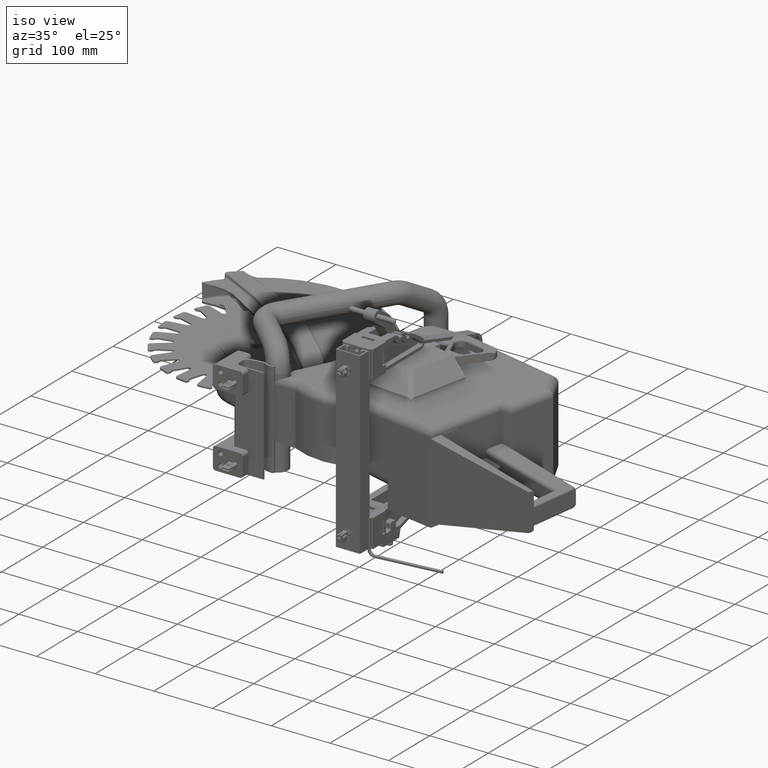
[diagram: clean part render]
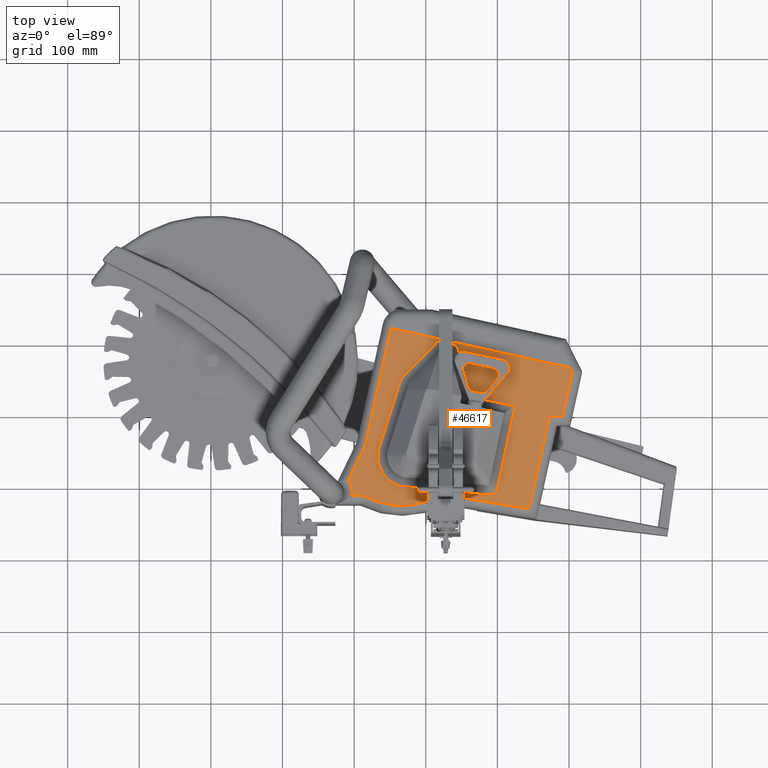
[diagram: tour spotlight — one face highlighted and labeled with its STEP entity id]
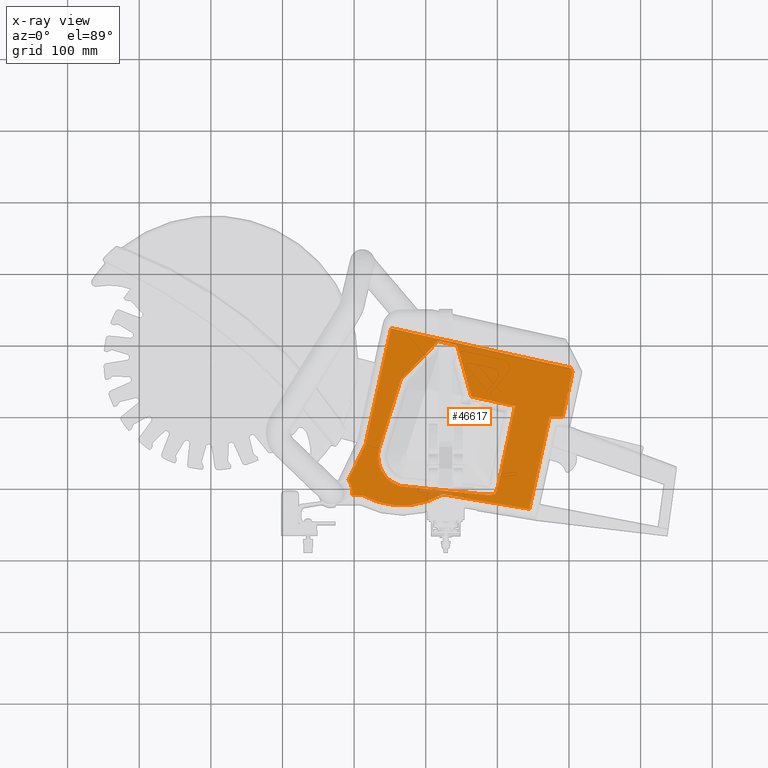
[diagram: x-ray of the same camera — body ghosted, this tour face saturated]
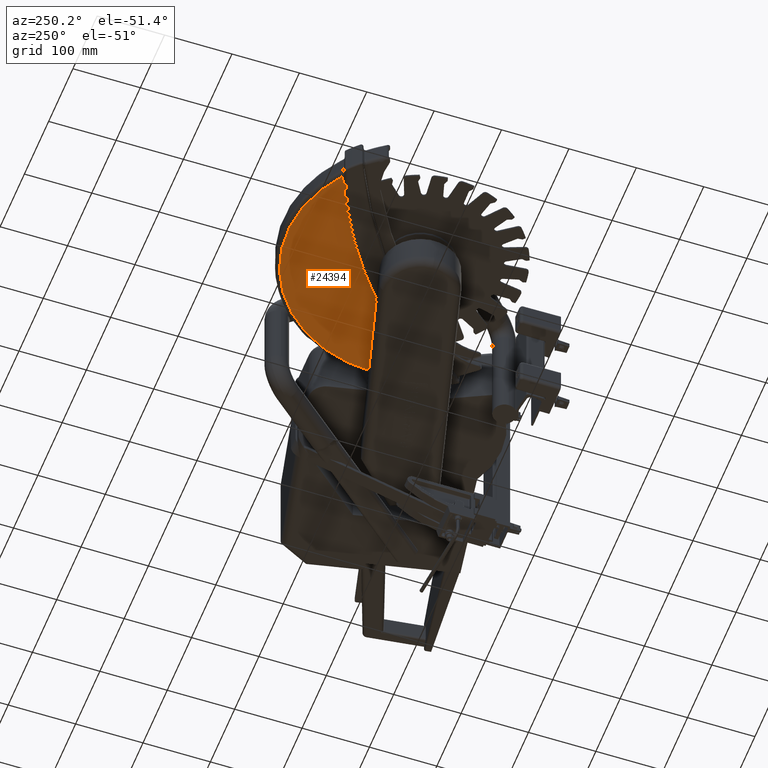
[diagram: tour spotlight — one face highlighted and labeled with its STEP entity id]
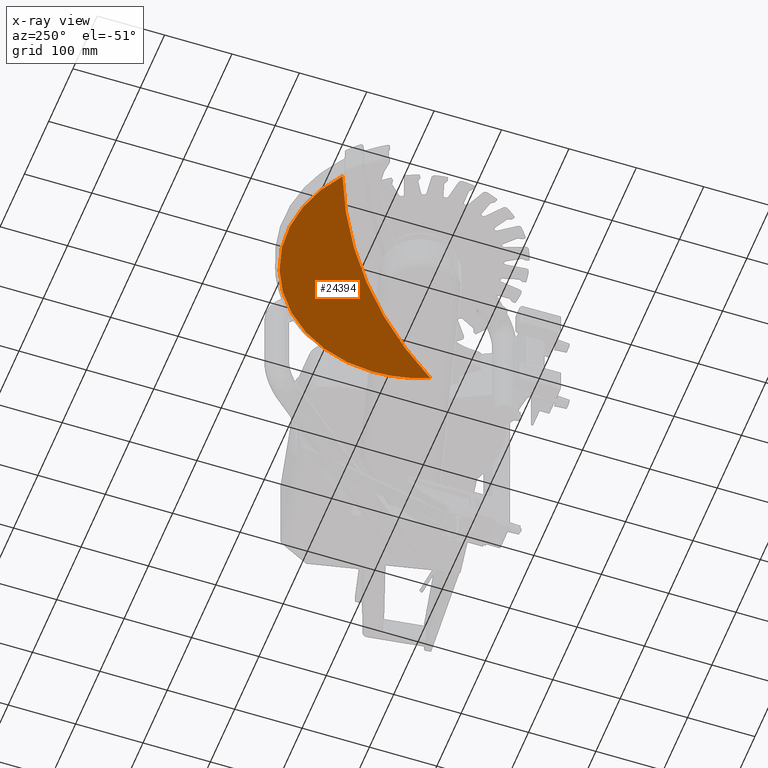
[diagram: x-ray of the same camera — body ghosted, this tour face saturated]
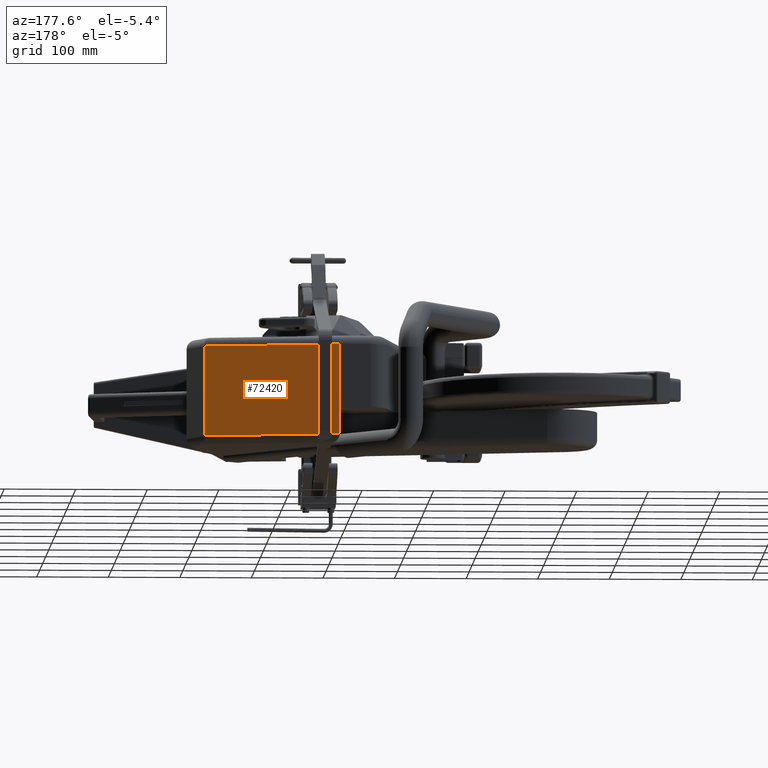
[diagram: tour spotlight — one face highlighted and labeled with its STEP entity id]
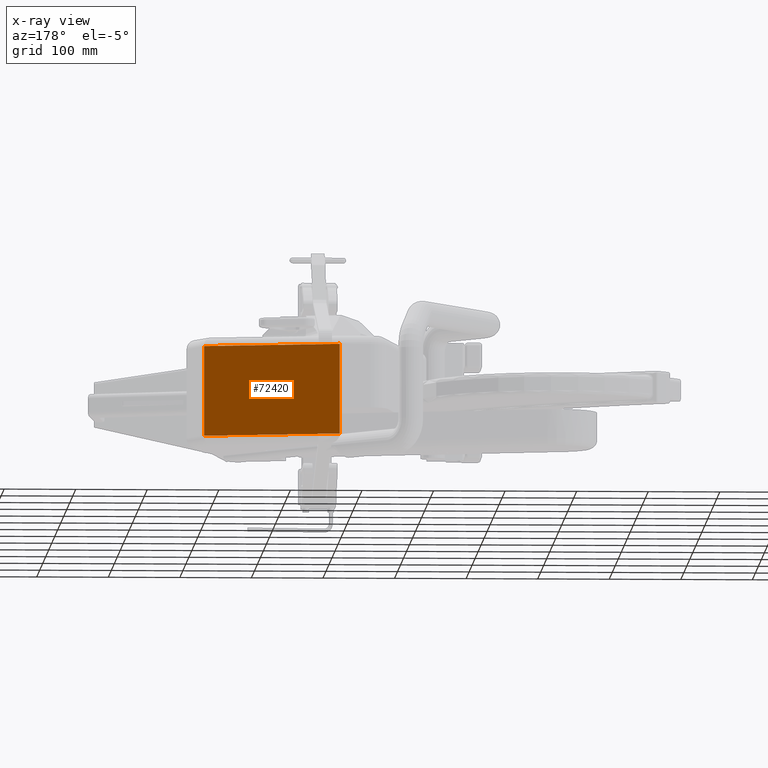
[diagram: x-ray of the same camera — body ghosted, this tour face saturated]
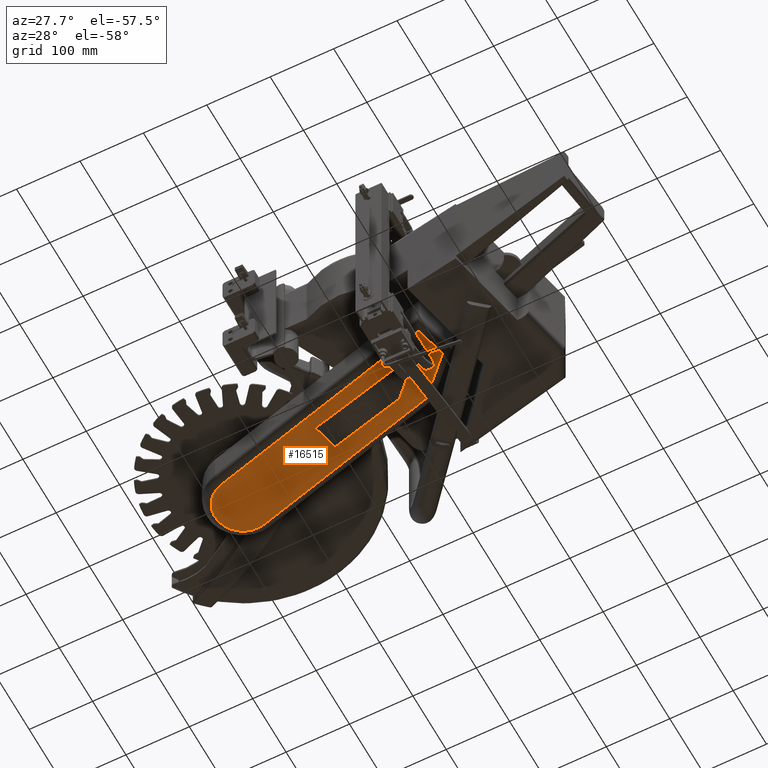
[diagram: tour spotlight — one face highlighted and labeled with its STEP entity id]
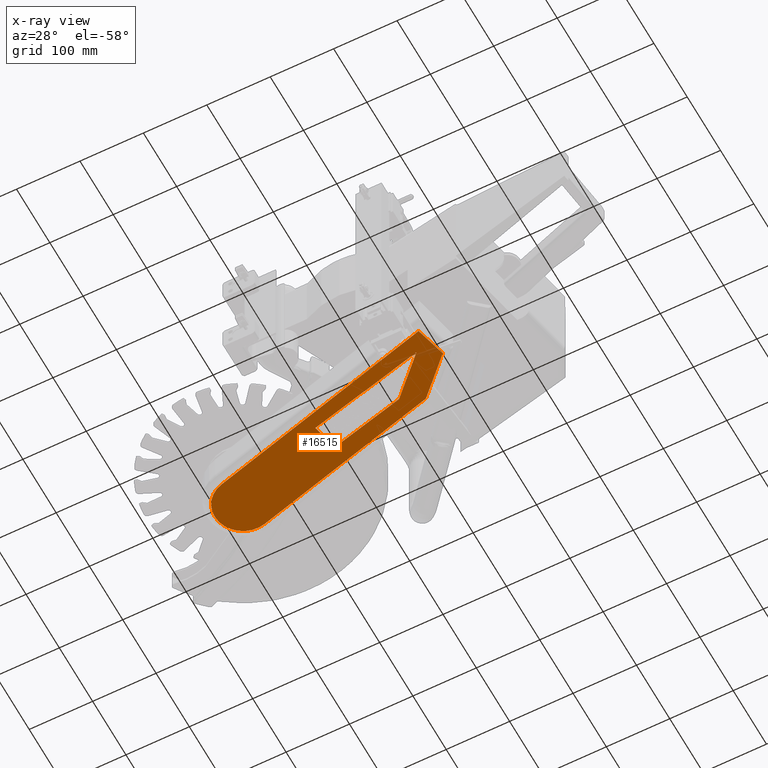
[diagram: x-ray of the same camera — body ghosted, this tour face saturated]
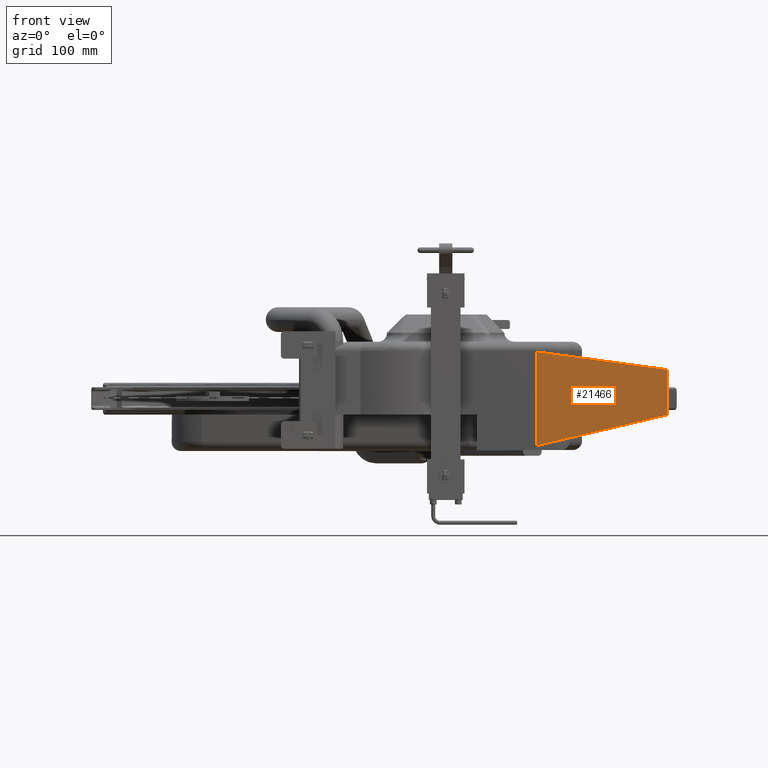
[diagram: tour spotlight — one face highlighted and labeled with its STEP entity id]
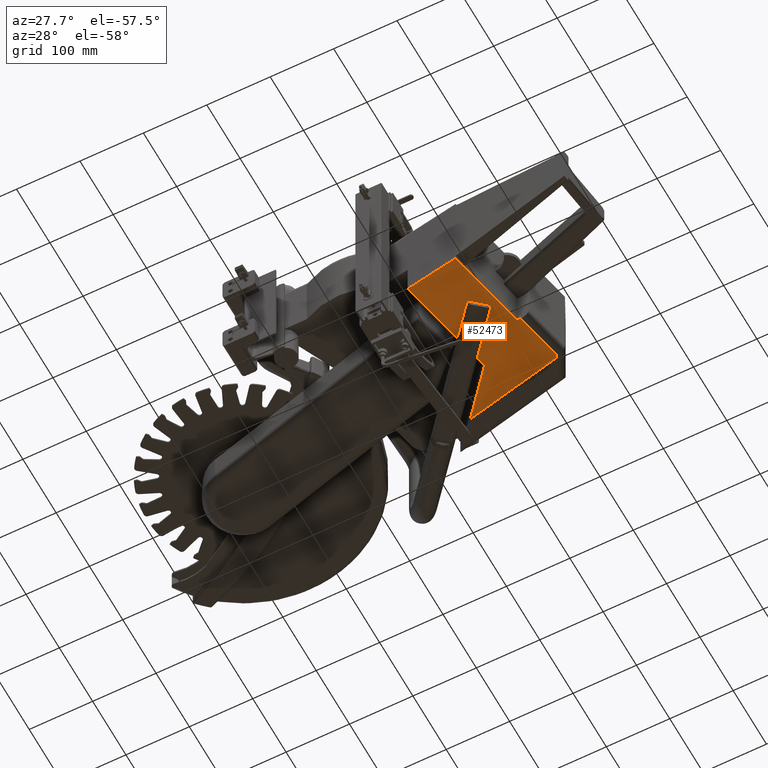
[diagram: tour spotlight — one face highlighted and labeled with its STEP entity id]
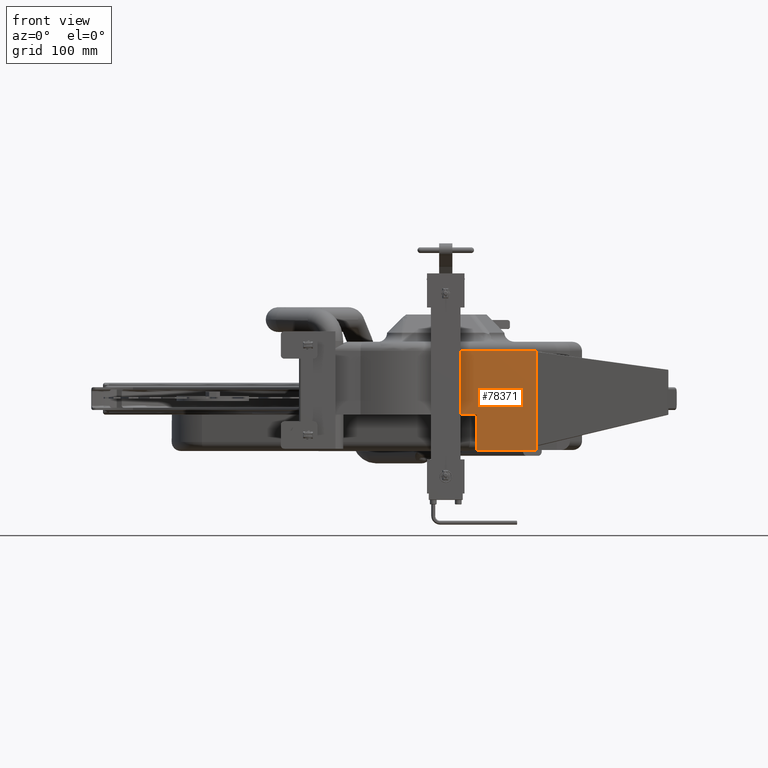
[diagram: tour spotlight — one face highlighted and labeled with its STEP entity id]
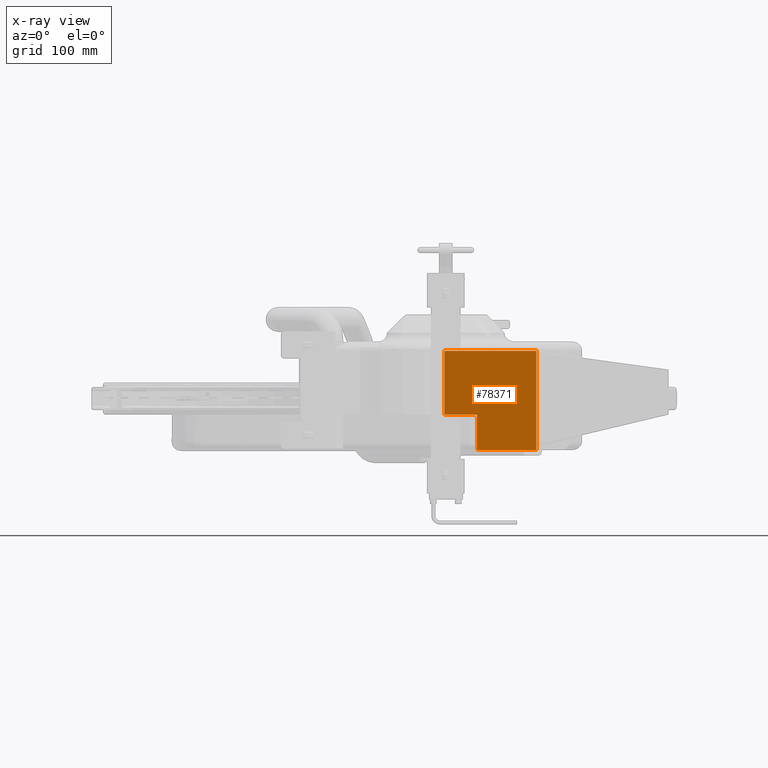
[diagram: x-ray of the same camera — body ghosted, this tour face saturated]
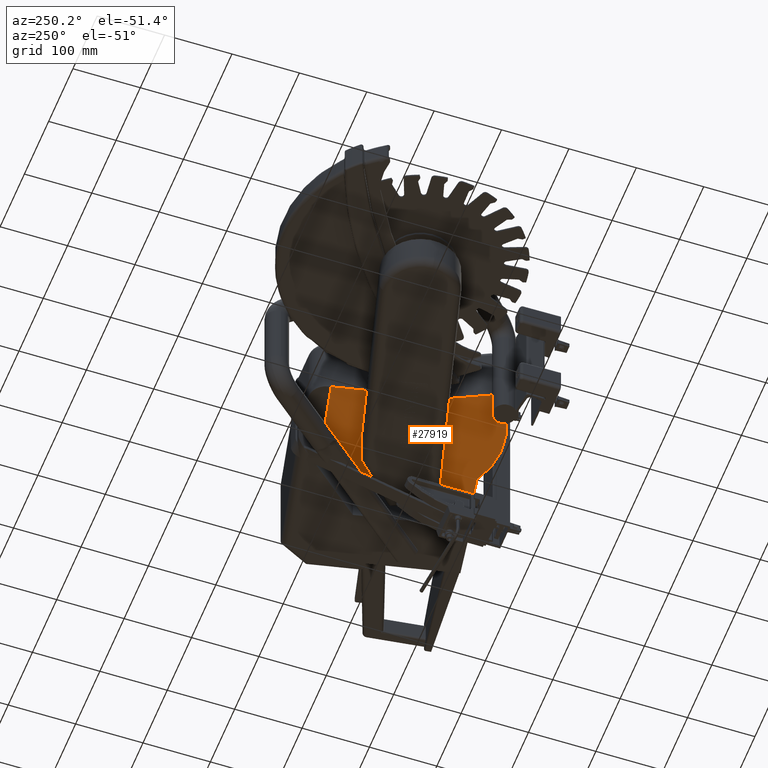
[diagram: tour spotlight — one face highlighted and labeled with its STEP entity id]
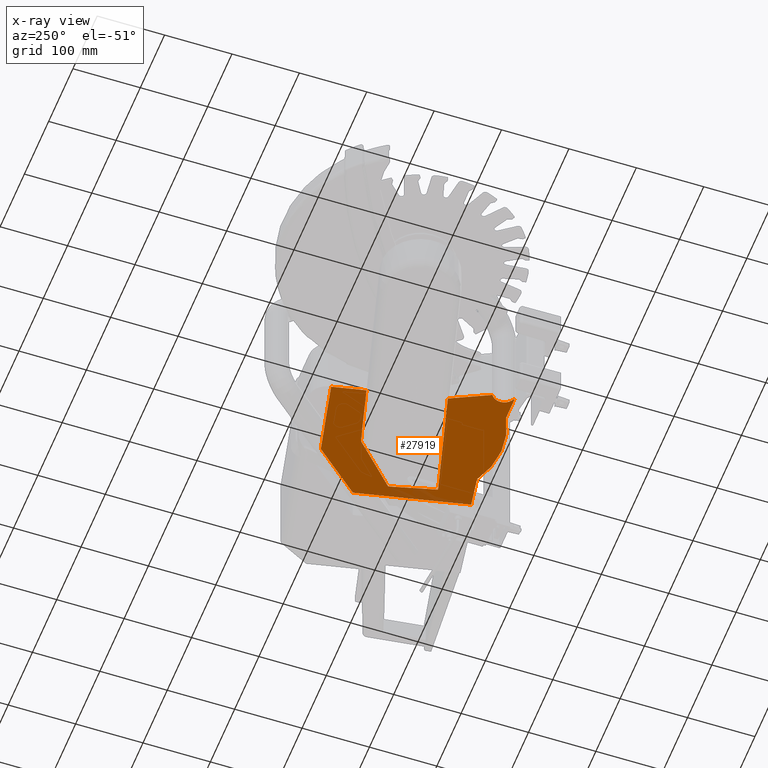
[diagram: x-ray of the same camera — body ghosted, this tour face saturated]
A machine part: a face-by-face anatomy tour. The part has 3492 B-rep faces; the first image is the clean iso view, then the 8 largest visible faces are spotlighted one at a time (largest first), each with its STEP entity span.

Face 1 — top view, entity #46617. An x-ray twin of the same camera follows (body ghosted, this face saturated) — the face is partly hidden behind the body. In plain terms, the highlighted planar face has unit normal (0, 0, -1).
Definition (entity closure, byte-faithful):
#610 = ORIENTED_EDGE ( 'NONE', *, *, #59230, .T. ) ;
#917 = DIRECTION ( 'NONE',  ( -1.000000000000000000, 0.0000000000000000000, 0.0000000000000000000 ) ) ;
#1034 = CARTESIAN_POINT ( 'NONE',  ( 18.05375563733055300, -5.229141625918607000, 3.125000000000000900 ) ) ;
#1227 = CARTESIAN_POINT ( 'NONE',  ( 14.93126257918799600, -7.387104302258836500, 3.124999999999999600 ) ) ;
#1559 = VERTEX_POINT ( 'NONE', #6476 ) ;
#1675 = DIRECTION ( 'NONE',  ( -0.9949324481249938200, 0.1005456297807432700, -0.0000000000000000000 ) ) ;
#2380 = LINE ( 'NONE', #43093, #37387 ) ;
#3455 = CARTESIAN_POINT ( 'NONE',  ( 13.43634997696077700, 0.8238062368275757000, 3.125000000000000900 ) ) ;
#3613 = EDGE_CURVE ( 'NONE', #51332, #8581, #68465, .T. ) ;
#3761 = ORIENTED_EDGE ( 'NONE', *, *, #47761, .T. ) ;
#4346 = VECTOR ( 'NONE', #84859, 39.37007874015748100 ) ;
#4666 = VECTOR ( 'NONE', #72104, 39.37007874015747400 ) ;
#5396 = DIRECTION ( 'NONE',  ( -0.4339922573936549900, -0.9009166002035702300, 0.0000000000000000000 ) ) ;
#5663 = CIRCLE ( 'NONE', #46017, 4.437257009468104300 ) ;
#6317 = EDGE_CURVE ( 'NONE', #67841, #11730, #10357, .T. ) ;
#6476 = CARTESIAN_POINT ( 'NONE',  ( 7.665000981367956700, -7.428613643294152500, 3.125000000000000900 ) ) ;
#6639 = ORIENTED_EDGE ( 'NONE', *, *, #90104, .T. ) ;
#6690 = DIRECTION ( 'NONE',  ( -1.000000000000000000, 0.0000000000000000000, 0.0000000000000000000 ) ) ;
#7032 = CARTESIAN_POINT ( 'NONE',  ( 10.38504098103148200, -6.927518749072558700, 3.125000000000000900 ) ) ;
#7205 = CARTESIAN_POINT ( 'NONE',  ( 19.23969745080192300, -3.103655944053554700, 3.125000000000000900 ) ) ;
#7296 = DIRECTION ( 'NONE',  ( 0.2648580210204656800, -0.9642874201715598800, 0.0000000000000000000 ) ) ;
#7397 = CARTESIAN_POINT ( 'NONE',  ( 12.39702543223388700, 1.044691809852337700, 3.125000000000000900 ) ) ;
#7614 = VERTEX_POINT ( 'NONE', #69316 ) ;
#7758 = B_SPLINE_CURVE_WITH_KNOTS ( 'NONE', 3,
 ( #87613, #38621, #52674, #10810, #59716, #17805, #66737, #24831, #73830, #31911 ),
 .UNSPECIFIED., .F., .F.,
 ( 4, 2, 2, 2, 4 ),
 ( 0.0000000000000000000, 0.004447936954442389300, 0.008895873908884778500, 0.01334381086332716800, 0.01779174781776955700 ),
 .UNSPECIFIED. ) ;
#8262 = CARTESIAN_POINT ( 'NONE',  ( 14.81512962544774800, -7.375213518277024400, 3.125000000000000900 ) ) ;
#8581 = VERTEX_POINT ( 'NONE', #38232 ) ;
#8803 = DIRECTION ( 'NONE',  ( 0.9766185162988196800, -0.2149797051404897200, 0.0000000000000000000 ) ) ;
#8904 = CARTESIAN_POINT ( 'NONE',  ( 9.813525301233218200, 1.753666472630141000, 3.125000000000000900 ) ) ;
#9912 = CARTESIAN_POINT ( 'NONE',  ( 10.78131088365307700, -5.293594015761623700, 3.125000000000000900 ) ) ;
#10357 = LINE ( 'NONE', #40129, #82579 ) ;
#10810 = CARTESIAN_POINT ( 'NONE',  ( 15.68562389053611900, -6.931809644880346800, 3.124999999999999600 ) ) ;
#10855 = CARTESIAN_POINT ( 'NONE',  ( 12.39702543223388700, 1.044691809852337700, 3.125000000000000900 ) ) ;
#11164 = ORIENTED_EDGE ( 'NONE', *, *, #13623, .T. ) ;
#11596 = CARTESIAN_POINT ( 'NONE',  ( 10.32789594978766700, -6.921641894887626400, 3.125000000000000900 ) ) ;
#11730 = VERTEX_POINT ( 'NONE', #79173 ) ;
#12306 = ORIENTED_EDGE ( 'NONE', *, *, #50126, .F. ) ;
#12477 = DIRECTION ( 'NONE',  ( 1.000000000000000000, 0.0000000000000000000, 0.0000000000000000000 ) ) ;
#12784 = ORIENTED_EDGE ( 'NONE', *, *, #62748, .T. ) ;
#13623 = EDGE_CURVE ( 'NONE', #86683, #58544, #30879, .T. ) ;
#14079 = CARTESIAN_POINT ( 'NONE',  ( 10.41361862347578100, -6.930406741179587500, 3.125000000000000900 ) ) ;
#14510 = LINE ( 'NONE', #45196, #88960 ) ;
#14984 = CARTESIAN_POINT ( 'NONE',  ( 15.39750983478458200, -7.390166592244525200, 3.125000000000000000 ) ) ;
#15569 = ORIENTED_EDGE ( 'NONE', *, *, #86319, .T. ) ;
#16102 = CARTESIAN_POINT ( 'NONE',  ( 19.04586989904088800, 0.7973154307316473500, 3.125000000000000900 ) ) ;
#16286 = DIRECTION ( 'NONE',  ( -0.2084354693603817600, -0.9780361215786037600, -0.0000000000000000000 ) ) ;
#16904 = DIRECTION ( 'NONE',  ( -1.000000000000000000, 0.0000000000000000000, 0.0000000000000000000 ) ) ;
#17064 = ORIENTED_EDGE ( 'NONE', *, *, #63548, .T. ) ;
#17608 = EDGE_CURVE ( 'NONE', #52053, #86683, #52174, .T. ) ;
#17792 = VECTOR ( 'NONE', #8803, 39.37007874015748100 ) ;
#17805 = CARTESIAN_POINT ( 'NONE',  ( 15.63841491357380400, -7.099735808356676600, 3.125000000000000900 ) ) ;
#18268 = DIRECTION ( 'NONE',  ( 0.2996013004162660900, 0.9540644950887138300, -0.0000000000000000000 ) ) ;
#19263 = ORIENTED_EDGE ( 'NONE', *, *, #54995, .T. ) ;
#19362 = CARTESIAN_POINT ( 'NONE',  ( 7.467685704148399500, -6.577159381319819300, 3.125000000000000900 ) ) ;
#20575 = VERTEX_POINT ( 'NONE', #69192 ) ;
#20720 = ORIENTED_EDGE ( 'NONE', *, *, #35950, .T. ) ;
#21080 = CARTESIAN_POINT ( 'NONE',  ( 10.35646005193672200, -6.924660870625009700, 3.125000000000000900 ) ) ;
#21102 = LINE ( 'NONE', #16102, #4666 ) ;
#21994 = CARTESIAN_POINT ( 'NONE',  ( 15.51149482278142800, -7.363270094265045500, 3.125000000000000900 ) ) ;
#22271 = EDGE_CURVE ( 'NONE', #81746, #86513, #14510, .T. ) ;
#22577 = EDGE_CURVE ( 'NONE', #8581, #25812, #64788, .T. ) ;
#22879 = DIRECTION ( 'NONE',  ( 0.9999799062497024500, 0.006339329368029765000, 0.0000000000000000000 ) ) ;
#24008 = CARTESIAN_POINT ( 'NONE',  ( 14.20425835343803200, -1.971972363451875500, 3.125000000000000900 ) ) ;
#24695 = B_SPLINE_CURVE_WITH_KNOTS ( 'NONE', 3,
 ( #60042, #46003, #81163, #39218 ),
 .UNSPECIFIED., .F., .F.,
 ( 4, 4 ),
 ( 1.530754089281244400E-005, 0.003109857189374004900 ),
 .UNSPECIFIED. ) ;
#24831 = CARTESIAN_POINT ( 'NONE',  ( 15.57251939459869800, -7.261806498686277100, 3.124999999999999600 ) ) ;
#24882 = CARTESIAN_POINT ( 'NONE',  ( 13.43634997696077700, 0.8238062368275757000, 3.125000000000000900 ) ) ;
#25574 = CARTESIAN_POINT ( 'NONE',  ( 8.728295410523957200, -3.176359852482686800, 3.125000000000000900 ) ) ;
#25803 = VERTEX_POINT ( 'NONE', #8904 ) ;
#25812 = VERTEX_POINT ( 'NONE', #30006 ) ;
#26306 = VECTOR ( 'NONE', #12477, 39.37007874015748100 ) ;
#26616 = LINE ( 'NONE', #30675, #80249 ) ;
#27031 = VECTOR ( 'NONE', #7296, 39.37007874015748900 ) ;
#27341 = VERTEX_POINT ( 'NONE', #45273 ) ;
#27494 = ORIENTED_EDGE ( 'NONE', *, *, #68896, .T. ) ;
#28433 = DIRECTION ( 'NONE',  ( 0.6967835284718190100, 0.7172814750503192500, -0.0000000000000000000 ) ) ;
#28794 = CARTESIAN_POINT ( 'NONE',  ( 8.410526476526872100, -4.619933443037584000, 3.125000000000000900 ) ) ;
#29059 = LINE ( 'NONE', #25574, #80472 ) ;
#29067 = CARTESIAN_POINT ( 'NONE',  ( 15.28070084789689200, -7.400944197858780900, 3.125000000000000900 ) ) ;
#29926 = CARTESIAN_POINT ( 'NONE',  ( 16.13944246375790600, -2.410868753513529600, 3.125000000000000900 ) ) ;
#30006 = CARTESIAN_POINT ( 'NONE',  ( 10.41361862347578100, -6.930406741179587500, 3.125000000000000900 ) ) ;
#30651 = EDGE_CURVE ( 'NONE', #7614, #51332, #7758, .T. ) ;
#30675 = CARTESIAN_POINT ( 'NONE',  ( 15.66970545143931100, -7.013827015051910900, 3.125000000000000900 ) ) ;
#30879 = CIRCLE ( 'NONE', #50377, 1.690058696791365100 ) ;
#30976 = VERTEX_POINT ( 'NONE', #7397 ) ;
#31911 = CARTESIAN_POINT ( 'NONE',  ( 15.51149482278142800, -7.363270094265045500, 3.125000000000000900 ) ) ;
#32314 = CARTESIAN_POINT ( 'NONE',  ( 10.40450635986312600, -3.545338455313044300, 3.125000000000000900 ) ) ;
#32432 = AXIS2_PLACEMENT_3D ( 'NONE', #9912, #58809, #16904 ) ;
#32591 = VERTEX_POINT ( 'NONE', #28794 ) ;
#33823 = B_SPLINE_CURVE_WITH_KNOTS ( 'NONE', 3,
 ( #14079, #7032, #21080, #70044 ),
 .UNSPECIFIED., .F., .F.,
 ( 4, 4 ),
 ( 0.0000000000000000000, 0.002188707744289083700 ),
 .UNSPECIFIED. ) ;
#34509 = CARTESIAN_POINT ( 'NONE',  ( 10.40450635986312600, -3.545338455313044300, 3.125000000000000900 ) ) ;
#35759 = CARTESIAN_POINT ( 'NONE',  ( 15.45506287933260800, -7.379889050059129700, 3.124999999999999100 ) ) ;
#35835 = ORIENTED_EDGE ( 'NONE', *, *, #17608, .T. ) ;
#35950 = EDGE_CURVE ( 'NONE', #84851, #52053, #24695, .T. ) ;
#35986 = VERTEX_POINT ( 'NONE', #67362 ) ;
#36056 = CARTESIAN_POINT ( 'NONE',  ( 15.19308170514780800, -7.402936534439109400, 3.125000000000000000 ) ) ;
#36083 = CARTESIAN_POINT ( 'NONE',  ( 18.73863520258686000, -5.379901830172710400, 3.125000000000000900 ) ) ;
#36192 = CARTESIAN_POINT ( 'NONE',  ( 9.168885886428531900, -4.787250232423109400, 3.125000000000000900 ) ) ;
#37387 = VECTOR ( 'NONE', #22879, 39.37007874015748900 ) ;
#38232 = CARTESIAN_POINT ( 'NONE',  ( 14.81512962544774800, -7.375213518277024400, 3.125000000000000900 ) ) ;
#38355 = VECTOR ( 'NONE', #18268, 39.37007874015748100 ) ;
#38400 = EDGE_CURVE ( 'NONE', #86513, #85224, #41592, .T. ) ;
#38621 = CARTESIAN_POINT ( 'NONE',  ( 15.72358996676345900, -6.760986159594336800, 3.125000000000000000 ) ) ;
#38690 = CARTESIAN_POINT ( 'NONE',  ( 12.64650641843149600, -7.374527077652410300, 3.125000000000000900 ) ) ;
#39160 = LINE ( 'NONE', #89266, #74248 ) ;
#39218 = CARTESIAN_POINT ( 'NONE',  ( 10.21182391891770200, -6.884814615049044100, 3.125000000000000900 ) ) ;
#39312 = DIRECTION ( 'NONE',  ( -1.000000000000000000, 8.619260013492936400E-016, 0.0000000000000000000 ) ) ;
#39664 = CARTESIAN_POINT ( 'NONE',  ( 15.51149482278142800, -7.363270094265045500, 3.125000000000000900 ) ) ;
#40129 = CARTESIAN_POINT ( 'NONE',  ( 14.09464307498087100, -2.486317173080418600, 3.125000000000000900 ) ) ;
#40151 = DIRECTION ( 'NONE',  ( -0.0000000000000000000, -0.0000000000000000000, -1.000000000000000000 ) ) ;
#41544 = PLANE ( 'NONE',  #43879 ) ;
#41592 = LINE ( 'NONE', #1034, #4346 ) ;
#42035 = EDGE_LOOP ( 'NONE', ( #88436, #51784, #20720, #35835, #11164, #65599, #17064, #3761, #15569, #85619, #19263, #6639, #58128, #69720 ) ) ;
#42158 = CARTESIAN_POINT ( 'NONE',  ( 14.17198886420783100, -1.854486540669716400, 3.125000000000000900 ) ) ;
#42283 = CIRCLE ( 'NONE', #60323, 1.178613643294152300 ) ;
#42823 = DIRECTION ( 'NONE',  ( -0.0000000000000000000, -0.0000000000000000000, -1.000000000000000000 ) ) ;
#42859 = EDGE_CURVE ( 'NONE', #61220, #81746, #5663, .T. ) ;
#43093 = CARTESIAN_POINT ( 'NONE',  ( 10.40206150589000900, -3.159681754911743700, 3.125000000000000900 ) ) ;
#43102 = CARTESIAN_POINT ( 'NONE',  ( 15.04748290144430500, -7.397159935604833000, 3.125000000000000900 ) ) ;
#43557 = CARTESIAN_POINT ( 'NONE',  ( 10.37449493563232600, -6.926452989504306300, 3.125000000000000900 ) ) ;
#43879 = AXIS2_PLACEMENT_3D ( 'NONE', #34509, #48603, #6690 ) ;
#44927 = LINE ( 'NONE', #47339, #26306 ) ;
#45196 = CARTESIAN_POINT ( 'NONE',  ( 9.844917436722322900, -6.908357156986262700, 3.125000000000000900 ) ) ;
#45273 = CARTESIAN_POINT ( 'NONE',  ( 16.62846052454720800, -2.515086488193720700, 3.125000000000000900 ) ) ;
#45961 = ORIENTED_EDGE ( 'NONE', *, *, #61166, .T. ) ;
#46003 = CARTESIAN_POINT ( 'NONE',  ( 10.28875506477187200, -6.910811675227189500, 3.125000000000000000 ) ) ;
#46017 = AXIS2_PLACEMENT_3D ( 'NONE', #32314, #81240, #39312 ) ;
#46098 = ORIENTED_EDGE ( 'NONE', *, *, #47881, .T. ) ;
#46617 = ADVANCED_FACE ( 'NONE', ( #84100, #51210 ), #41544, .F. ) ;
#46664 = CARTESIAN_POINT ( 'NONE',  ( 9.091252186861712700, -5.293594015761623700, 3.125000000000000000 ) ) ;
#47339 = CARTESIAN_POINT ( 'NONE',  ( 10.40450635986312600, -7.428613643294152500, 3.125000000000000900 ) ) ;
#47761 = EDGE_CURVE ( 'NONE', #30976, #84241, #50859, .T. ) ;
#47881 = EDGE_CURVE ( 'NONE', #76325, #1559, #42283, .T. ) ;
#48385 = VECTOR ( 'NONE', #1675, 39.37007874015748900 ) ;
#48603 = DIRECTION ( 'NONE',  ( -0.0000000000000000000, 0.0000000000000000000, -1.000000000000000000 ) ) ;
#48703 = EDGE_CURVE ( 'NONE', #25803, #32591, #29059, .T. ) ;
#50120 = CARTESIAN_POINT ( 'NONE',  ( 14.87319976599685100, -7.381081955741268400, 3.125000000000001800 ) ) ;
#50126 = EDGE_CURVE ( 'NONE', #25803, #20575, #55030, .T. ) ;
#50377 = AXIS2_PLACEMENT_3D ( 'NONE', #84743, #42823, #917 ) ;
#50733 = ORIENTED_EDGE ( 'NONE', *, *, #22271, .T. ) ;
#50859 = B_SPLINE_CURVE_WITH_KNOTS ( 'NONE', 3,
 ( #10855, #52719, #66787, #24882 ),
 .UNSPECIFIED., .F., .F.,
 ( 4, 4 ),
 ( 0.0000000000000000000, 0.02698845258051200600 ),
 .UNSPECIFIED. ) ;
#51177 = VECTOR ( 'NONE', #71812, 39.37007874015748100 ) ;
#51210 = FACE_OUTER_BOUND ( 'NONE', #73778, .T. ) ;
#51332 = VERTEX_POINT ( 'NONE', #39664 ) ;
#51586 = CARTESIAN_POINT ( 'NONE',  ( 17.40712756829588100, -8.166669821731861800, 3.125000000000000900 ) ) ;
#51784 = ORIENTED_EDGE ( 'NONE', *, *, #78909, .T. ) ;
#51890 = EDGE_CURVE ( 'NONE', #58544, #35986, #56972, .T. ) ;
#52053 = VERTEX_POINT ( 'NONE', #54981 ) ;
#52174 = CIRCLE ( 'NONE', #32432, 1.690058696791365100 ) ;
#52674 = CARTESIAN_POINT ( 'NONE',  ( 15.71156930780938400, -6.818126897072965600, 3.125000000000000900 ) ) ;
#52719 = CARTESIAN_POINT ( 'NONE',  ( 12.74365239362265700, 0.9719358598285654500, 3.125000000000000900 ) ) ;
#53625 = CARTESIAN_POINT ( 'NONE',  ( 9.135592060319758900, -2.312686262668382400, 3.125000000000000900 ) ) ;
#53915 = LINE ( 'NONE', #36083, #86827 ) ;
#54195 = CARTESIAN_POINT ( 'NONE',  ( 19.77780056054518500, -0.6591393311490433300, 3.125000000000000900 ) ) ;
#54212 = DIRECTION ( 'NONE',  ( -0.2084354693603806800, -0.9780361215786039800, 0.0000000000000000000 ) ) ;
#54973 = CARTESIAN_POINT ( 'NONE',  ( 8.257549540901896600, -7.428613643294152500, 3.125000000000000900 ) ) ;
#54981 = CARTESIAN_POINT ( 'NONE',  ( 10.21182391891770200, -6.884814615049044100, 3.125000000000000900 ) ) ;
#54995 = EDGE_CURVE ( 'NONE', #11730, #27341, #55590, .T. ) ;
#55030 = LINE ( 'NONE', #57708, #17792 ) ;
#55590 = LINE ( 'NONE', #29926, #51177 ) ;
#56605 = VERTEX_POINT ( 'NONE', #7205 ) ;
#56972 = LINE ( 'NONE', #67200, #38355 ) ;
#57708 = CARTESIAN_POINT ( 'NONE',  ( 11.48973625057238500, 1.384687869799783800, 3.125000000000000900 ) ) ;
#57731 = CARTESIAN_POINT ( 'NONE',  ( 18.52062810660653700, -3.108214453062404300, 3.125000000000000900 ) ) ;
#58128 = ORIENTED_EDGE ( 'NONE', *, *, #30651, .T. ) ;
#58544 = VERTEX_POINT ( 'NONE', #36192 ) ;
#58783 = VECTOR ( 'NONE', #28433, 39.37007874015748100 ) ;
#58809 = DIRECTION ( 'NONE',  ( -0.0000000000000000000, -0.0000000000000000000, -1.000000000000000000 ) ) ;
#59230 = EDGE_CURVE ( 'NONE', #56605, #85696, #53915, .T. ) ;
#59716 = CARTESIAN_POINT ( 'NONE',  ( 15.67160980809914700, -6.988324701784375900, 3.125000000000000900 ) ) ;
#60042 = CARTESIAN_POINT ( 'NONE',  ( 10.32789594978766700, -6.921641894887626400, 3.125000000000000900 ) ) ;
#60323 = AXIS2_PLACEMENT_3D ( 'NONE', #82094, #40151, #89167 ) ;
#61166 = EDGE_CURVE ( 'NONE', #1559, #61220, #44927, .T. ) ;
#61220 = VERTEX_POINT ( 'NONE', #54973 ) ;
#62748 = EDGE_CURVE ( 'NONE', #32591, #76325, #39160, .T. ) ;
#62967 = ORIENTED_EDGE ( 'NONE', *, *, #42859, .T. ) ;
#63548 = EDGE_CURVE ( 'NONE', #35986, #30976, #77425, .T. ) ;
#64788 = LINE ( 'NONE', #43557, #48385 ) ;
#65599 = ORIENTED_EDGE ( 'NONE', *, *, #51890, .T. ) ;
#66737 = CARTESIAN_POINT ( 'NONE',  ( 15.61925889373103800, -7.154639626735078500, 3.125000000000000900 ) ) ;
#66787 = CARTESIAN_POINT ( 'NONE',  ( 13.09011927644447600, 0.8984266981692844400, 3.125000000000000900 ) ) ;
#66863 = ORIENTED_EDGE ( 'NONE', *, *, #38400, .T. ) ;
#67200 = CARTESIAN_POINT ( 'NONE',  ( 10.46678037391293300, -0.6541738834227225400, 3.125000000000000900 ) ) ;
#67362 = CARTESIAN_POINT ( 'NONE',  ( 10.33306374785445300, -1.079987406755889400, 3.125000000000000900 ) ) ;
#67841 = VERTEX_POINT ( 'NONE', #24008 ) ;
#68465 = B_SPLINE_CURVE_WITH_KNOTS ( 'NONE', 3,
 ( #21994, #35759, #14984, #70960, #29067, #78005, #36056, #85045, #43102, #1227, #50120, #8262 ),
 .UNSPECIFIED., .F., .F.,
 ( 4, 2, 2, 2, 2, 4 ),
 ( 0.002456778462757343500, 0.006930192436245737400, 0.009166899422990017200, 0.01140360640973429900, 0.01587702038322302500, 0.02035043435671175100 ),
 .UNSPECIFIED. ) ;
#68896 = EDGE_CURVE ( 'NONE', #85224, #56605, #2380, .T. ) ;
#69192 = CARTESIAN_POINT ( 'NONE',  ( 19.65382636399881400, -0.4124454591650556500, 3.125000000000000900 ) ) ;
#69316 = CARTESIAN_POINT ( 'NONE',  ( 15.73575673635254700, -6.703896355361117700, 3.125000000000000900 ) ) ;
#69720 = ORIENTED_EDGE ( 'NONE', *, *, #3613, .T. ) ;
#70044 = CARTESIAN_POINT ( 'NONE',  ( 10.32789594978766700, -6.921641894887626400, 3.125000000000000900 ) ) ;
#70960 = CARTESIAN_POINT ( 'NONE',  ( 15.31004464536661700, -7.399080007228144900, 3.125000000000001300 ) ) ;
#71812 = DIRECTION ( 'NONE',  ( 0.9780361215786037600, -0.2084354693603818800, 0.0000000000000000000 ) ) ;
#72104 = DIRECTION ( 'NONE',  ( -0.4490302047989617200, 0.8935165780097215100, 0.0000000000000000000 ) ) ;
#73778 = EDGE_LOOP ( 'NONE', ( #12306, #74455, #12784, #46098, #45961, #62967, #50733, #66863, #27494, #610, #74421 ) ) ;
#73830 = CARTESIAN_POINT ( 'NONE',  ( 15.54474661750219500, -7.314361287001268900, 3.125000000000000900 ) ) ;
#73931 = DIRECTION ( 'NONE',  ( 0.9864373731821369800, -0.1641380784264431000, 0.0000000000000000000 ) ) ;
#74248 = VECTOR ( 'NONE', #5396, 39.37007874015748100 ) ;
#74421 = ORIENTED_EDGE ( 'NONE', *, *, #76055, .T. ) ;
#74455 = ORIENTED_EDGE ( 'NONE', *, *, #48703, .T. ) ;
#76055 = EDGE_CURVE ( 'NONE', #85696, #20575, #21102, .T. ) ;
#76325 = VERTEX_POINT ( 'NONE', #19362 ) ;
#77425 = LINE ( 'NONE', #53625, #58783 ) ;
#78005 = CARTESIAN_POINT ( 'NONE',  ( 15.22225972002375400, -7.402868242793519300, 3.125000000000000900 ) ) ;
#78909 = EDGE_CURVE ( 'NONE', #25812, #84851, #33823, .T. ) ;
#79173 = CARTESIAN_POINT ( 'NONE',  ( 14.19886080966106000, -1.997299112291117500, 3.125000000000000900 ) ) ;
#80249 = VECTOR ( 'NONE', #16286, 39.37007874015748100 ) ;
#80472 = VECTOR ( 'NONE', #88642, 39.37007874015748100 ) ;
#81163 = CARTESIAN_POINT ( 'NONE',  ( 10.25005997111152200, -6.898499036503287700, 3.125000000000000900 ) ) ;
#81240 = DIRECTION ( 'NONE',  ( 0.0000000000000000000, 0.0000000000000000000, 1.000000000000000000 ) ) ;
#81746 = VERTEX_POINT ( 'NONE', #38690 ) ;
#82094 = CARTESIAN_POINT ( 'NONE',  ( 6.499999999999999100, -7.249999999999999100, 3.125000000000000900 ) ) ;
#82579 = VECTOR ( 'NONE', #54212, 39.37007874015748100 ) ;
#82853 = LINE ( 'NONE', #42158, #27031 ) ;
#84100 = FACE_BOUND ( 'NONE', #42035, .T. ) ;
#84241 = VERTEX_POINT ( 'NONE', #3455 ) ;
#84743 = CARTESIAN_POINT ( 'NONE',  ( 10.78131088365307700, -5.293594015761623700, 3.125000000000000900 ) ) ;
#84851 = VERTEX_POINT ( 'NONE', #11596 ) ;
#84859 = DIRECTION ( 'NONE',  ( 0.2149797051404898600, 0.9766185162988196800, 0.0000000000000000000 ) ) ;
#85045 = CARTESIAN_POINT ( 'NONE',  ( 15.10564472231514300, -7.401102654190824900, 3.125000000000000900 ) ) ;
#85067 = DIRECTION ( 'NONE',  ( 0.2149797051404902500, 0.9766185162988196800, 0.0000000000000000000 ) ) ;
#85224 = VERTEX_POINT ( 'NONE', #57731 ) ;
#85619 = ORIENTED_EDGE ( 'NONE', *, *, #6317, .T. ) ;
#85696 = VERTEX_POINT ( 'NONE', #54195 ) ;
#86319 = EDGE_CURVE ( 'NONE', #84241, #67841, #82853, .T. ) ;
#86513 = VERTEX_POINT ( 'NONE', #51586 ) ;
#86683 = VERTEX_POINT ( 'NONE', #46664 ) ;
#86827 = VECTOR ( 'NONE', #85067, 39.37007874015748100 ) ;
#87613 = CARTESIAN_POINT ( 'NONE',  ( 15.73575673635254700, -6.703896355361117700, 3.125000000000000900 ) ) ;
#88436 = ORIENTED_EDGE ( 'NONE', *, *, #22577, .T. ) ;
#88642 = DIRECTION ( 'NONE',  ( -0.2149797051404900300, -0.9766185162988196800, 0.0000000000000000000 ) ) ;
#88960 = VECTOR ( 'NONE', #73931, 39.37007874015748900 ) ;
#89167 = DIRECTION ( 'NONE',  ( -1.000000000000000000, 0.0000000000000000000, 0.0000000000000000000 ) ) ;
#89266 = CARTESIAN_POINT ( 'NONE',  ( 9.206247935985006200, -2.968109799295027600, 3.125000000000000900 ) ) ;
#90104 = EDGE_CURVE ( 'NONE', #27341, #7614, #26616, .T. ) ;

Face 2 — auxiliary view, entity #24394. An x-ray twin of the same camera follows (body ghosted, this face saturated) — the face is partly hidden behind the body. In plain terms, the highlighted planar face has unit normal (0, 0, 1).
Definition (entity closure, byte-faithful):
#4592 = CIRCLE ( 'NONE', #67293, 7.750000000000000000 ) ;
#6447 = CARTESIAN_POINT ( 'NONE',  ( 0.0000000000000000000, 0.0000000000000000000, -0.6250000000000000000 ) ) ;
#7232 = AXIS2_PLACEMENT_3D ( 'NONE', #59655, #17745, #66673 ) ;
#9142 = CIRCLE ( 'NONE', #80330, 24.97846855224413800 ) ;
#10349 = VERTEX_POINT ( 'NONE', #21363 ) ;
#14439 = VERTEX_POINT ( 'NONE', #52716 ) ;
#17745 = DIRECTION ( 'NONE',  ( -0.0000000000000000000, -0.0000000000000000000, -1.000000000000000000 ) ) ;
#20490 = PLANE ( 'NONE',  #21720 ) ;
#20801 = DIRECTION ( 'NONE',  ( 1.000000000000000000, 0.0000000000000000000, -0.0000000000000000000 ) ) ;
#21363 = CARTESIAN_POINT ( 'NONE',  ( 7.091391033192842000, -3.126447379111341200, -0.6250000000000000000 ) ) ;
#21720 = AXIS2_PLACEMENT_3D ( 'NONE', #6447, #62728, #20801 ) ;
#24394 = ADVANCED_FACE ( 'NONE', ( #83153 ), #20490, .F. ) ;
#34300 = CARTESIAN_POINT ( 'NONE',  ( -13.62133463793646200, -17.08735302623862400, -0.6250000000000000000 ) ) ;
#36028 = DIRECTION ( 'NONE',  ( -0.0000000000000000000, -0.0000000000000000000, -1.000000000000000000 ) ) ;
#41313 = DIRECTION ( 'NONE',  ( 1.000000000000000000, 0.0000000000000000000, 0.0000000000000000000 ) ) ;
#52716 = CARTESIAN_POINT ( 'NONE',  ( 7.750000000000000900, 0.0000000000000000000, -0.6250000000000000000 ) ) ;
#56184 = CIRCLE ( 'NONE', #7232, 7.750000000000000000 ) ;
#59021 = EDGE_CURVE ( 'NONE', #10349, #62505, #9142, .T. ) ;
#59655 = CARTESIAN_POINT ( 'NONE',  ( 0.0000000000000000000, 0.0000000000000000000, -0.6250000000000000000 ) ) ;
#62505 = VERTEX_POINT ( 'NONE', #78905 ) ;
#62728 = DIRECTION ( 'NONE',  ( 0.0000000000000000000, 0.0000000000000000000, 1.000000000000000000 ) ) ;
#66673 = DIRECTION ( 'NONE',  ( 1.000000000000000000, 0.0000000000000000000, 0.0000000000000000000 ) ) ;
#67293 = AXIS2_PLACEMENT_3D ( 'NONE', #77982, #36028, #85017 ) ;
#67294 = EDGE_CURVE ( 'NONE', #62505, #14439, #4592, .T. ) ;
#69580 = ORIENTED_EDGE ( 'NONE', *, *, #75293, .T. ) ;
#72681 = EDGE_LOOP ( 'NONE', ( #87938, #69580, #83569 ) ) ;
#75293 = EDGE_CURVE ( 'NONE', #14439, #10349, #56184, .T. ) ;
#77982 = CARTESIAN_POINT ( 'NONE',  ( 0.0000000000000000000, 0.0000000000000000000, -0.6250000000000000000 ) ) ;
#78905 = CARTESIAN_POINT ( 'NONE',  ( -4.628434787792740800, 6.216115460249267400, -0.6250000000000000000 ) ) ;
#80330 = AXIS2_PLACEMENT_3D ( 'NONE', #34300, #83257, #41313 ) ;
#83153 = FACE_OUTER_BOUND ( 'NONE', #72681, .T. ) ;
#83257 = DIRECTION ( 'NONE',  ( 0.0000000000000000000, 0.0000000000000000000, 1.000000000000000000 ) ) ;
#83569 = ORIENTED_EDGE ( 'NONE', *, *, #59021, .T. ) ;
#85017 = DIRECTION ( 'NONE',  ( 1.000000000000000000, 1.776356839400250500E-015, 0.0000000000000000000 ) ) ;
#87938 = ORIENTED_EDGE ( 'NONE', *, *, #67294, .T. ) ;

Face 3 — auxiliary view, entity #72420. An x-ray twin of the same camera follows (body ghosted, this face saturated) — the face is partly hidden behind the body. In plain terms, the highlighted planar face has unit normal (-0.215, -0.9766, 0).
Definition (entity closure, byte-faithful):
#7931 = VERTEX_POINT ( 'NONE', #51198 ) ;
#9982 = EDGE_LOOP ( 'NONE', ( #58816, #89168, #64766, #19224, #36764 ) ) ;
#15650 = VECTOR ( 'NONE', #51253, 39.37007874015748100 ) ;
#17184 = PLANE ( 'NONE',  #54709 ) ;
#19224 = ORIENTED_EDGE ( 'NONE', *, *, #59897, .F. ) ;
#20435 = DIRECTION ( 'NONE',  ( -0.9766185162988196800, 0.2149797051404896700, -0.0000000000000000000 ) ) ;
#20527 = CARTESIAN_POINT ( 'NONE',  ( 12.02590414864370200, 2.802574956985768800, -2.325000000000000600 ) ) ;
#21965 = EDGE_CURVE ( 'NONE', #37984, #43670, #46265, .T. ) ;
#27673 = VECTOR ( 'NONE', #20435, 39.37007874015748100 ) ;
#29582 = VERTEX_POINT ( 'NONE', #68572 ) ;
#31282 = DIRECTION ( 'NONE',  ( 0.9766185162988196800, -0.2149797051404896700, 0.0000000000000000000 ) ) ;
#34245 = LINE ( 'NONE', #71801, #15650 ) ;
#36764 = ORIENTED_EDGE ( 'NONE', *, *, #77369, .T. ) ;
#36875 = VERTEX_POINT ( 'NONE', #85659 ) ;
#37984 = VERTEX_POINT ( 'NONE', #45166 ) ;
#43246 = DIRECTION ( 'NONE',  ( -0.0000000000000000000, -0.0000000000000000000, -1.000000000000000000 ) ) ;
#43670 = VERTEX_POINT ( 'NONE', #20527 ) ;
#45166 = CARTESIAN_POINT ( 'NONE',  ( 19.41514855161792900, 1.176005773162961200, -2.324999999999999700 ) ) ;
#46265 = LINE ( 'NONE', #55315, #27673 ) ;
#50151 = EDGE_CURVE ( 'NONE', #36875, #37984, #34245, .T. ) ;
#51198 = CARTESIAN_POINT ( 'NONE',  ( 12.02590414864370200, 2.802574956985768800, -0.8750000000000001100 ) ) ;
#51253 = DIRECTION ( 'NONE',  ( -0.0000000000000000000, -0.0000000000000000000, -1.000000000000000000 ) ) ;
#52760 = CARTESIAN_POINT ( 'NONE',  ( 12.02590414864370200, 2.802574956985768800, -2.825000000000000600 ) ) ;
#54709 = AXIS2_PLACEMENT_3D ( 'NONE', #58798, #73211, #31282 ) ;
#55315 = CARTESIAN_POINT ( 'NONE',  ( 12.02590414864370200, 2.802574956985768800, -2.324999999999999700 ) ) ;
#58798 = CARTESIAN_POINT ( 'NONE',  ( 12.02590414864370200, 2.802574956985768800, 3.125000000000000900 ) ) ;
#58816 = ORIENTED_EDGE ( 'NONE', *, *, #50151, .T. ) ;
#59739 = VECTOR ( 'NONE', #73916, 39.37007874015748100 ) ;
#59897 = EDGE_CURVE ( 'NONE', #29582, #7931, #88926, .T. ) ;
#64766 = ORIENTED_EDGE ( 'NONE', *, *, #65416, .T. ) ;
#65416 = EDGE_CURVE ( 'NONE', #43670, #7931, #78383, .T. ) ;
#65789 = VECTOR ( 'NONE', #88131, 39.37007874015748100 ) ;
#66414 = FACE_OUTER_BOUND ( 'NONE', #9982, .T. ) ;
#68065 = VECTOR ( 'NONE', #43246, 39.37007874015748100 ) ;
#68572 = CARTESIAN_POINT ( 'NONE',  ( 12.02590414864370200, 2.802574956985768800, 2.625000000000000000 ) ) ;
#71428 = CARTESIAN_POINT ( 'NONE',  ( 12.02590414864370200, 2.802574956985768800, 3.125000000000000900 ) ) ;
#71801 = CARTESIAN_POINT ( 'NONE',  ( 19.41514855161792900, 1.176005773162961200, 3.125000000000000900 ) ) ;
#72420 = ADVANCED_FACE ( 'NONE', ( #66414 ), #17184, .F. ) ;
#73211 = DIRECTION ( 'NONE',  ( -0.2149797051404897000, -0.9766185162988197900, 0.0000000000000000000 ) ) ;
#73768 = CARTESIAN_POINT ( 'NONE',  ( 12.02590414864370200, 2.802574956985768800, 2.625000000000000000 ) ) ;
#73916 = DIRECTION ( 'NONE',  ( -0.0000000000000000000, -0.0000000000000000000, 1.000000000000000000 ) ) ;
#77369 = EDGE_CURVE ( 'NONE', #29582, #36875, #84444, .T. ) ;
#78383 = LINE ( 'NONE', #52760, #59739 ) ;
#84444 = LINE ( 'NONE', #73768, #65789 ) ;
#85659 = CARTESIAN_POINT ( 'NONE',  ( 19.41514855161792900, 1.176005773162961200, 2.625000000000000000 ) ) ;
#88131 = DIRECTION ( 'NONE',  ( 0.9766185162988196800, -0.2149797051404896700, -0.0000000000000000000 ) ) ;
#88926 = LINE ( 'NONE', #71428, #68065 ) ;
#89168 = ORIENTED_EDGE ( 'NONE', *, *, #21965, .T. ) ;

Face 4 — auxiliary view, entity #16515. An x-ray twin of the same camera follows (body ghosted, this face saturated) — the face is partly hidden behind the body. In plain terms, the highlighted planar face has unit normal (0, 0, -1).
Definition (entity closure, byte-faithful):
#1466 = DIRECTION ( 'NONE',  ( 0.2401702237565516200, 0.9707307884376223900, -0.0000000000000000000 ) ) ;
#1696 = VECTOR ( 'NONE', #43534, 39.37007874015748100 ) ;
#1989 = EDGE_CURVE ( 'NONE', #75174, #59103, #86372, .T. ) ;
#3937 = DIRECTION ( 'NONE',  ( -0.9707307884376223900, 0.2401702237565512000, -0.0000000000000000000 ) ) ;
#4033 = DIRECTION ( 'NONE',  ( -1.000000000000000000, 0.0000000000000000000, 0.0000000000000000000 ) ) ;
#6007 = CARTESIAN_POINT ( 'NONE',  ( 6.232846170216415500, -0.9576785485758853000, -2.875000000000000400 ) ) ;
#6655 = EDGE_CURVE ( 'NONE', #59103, #13353, #58447, .T. ) ;
#6954 = DIRECTION ( 'NONE',  ( 0.7071067811865472400, -0.7071067811865476800, -0.0000000000000000000 ) ) ;
#7555 = VERTEX_POINT ( 'NONE', #6007 ) ;
#8503 = VECTOR ( 'NONE', #34322, 39.37007874015748100 ) ;
#9896 = ORIENTED_EDGE ( 'NONE', *, *, #85336, .F. ) ;
#13252 = CARTESIAN_POINT ( 'NONE',  ( 12.23841415261743400, -1.458905330431155900, -2.875000000000000400 ) ) ;
#13353 = VERTEX_POINT ( 'NONE', #73516 ) ;
#15278 = VERTEX_POINT ( 'NONE', #81105 ) ;
#15693 = LINE ( 'NONE', #90813, #48518 ) ;
#15960 = DIRECTION ( 'NONE',  ( -0.2588190451025217900, -0.9659258262890679800, 0.0000000000000000000 ) ) ;
#16014 = CARTESIAN_POINT ( 'NONE',  ( 8.563922914050330300, -0.4829629131445358800, -2.875000000000000400 ) ) ;
#16515 = ADVANCED_FACE ( 'NONE', ( #84081, #30453 ), #26448, .T. ) ;
#18044 = LINE ( 'NONE', #16014, #1696 ) ;
#18377 = VECTOR ( 'NONE', #65660, 39.37007874015748900 ) ;
#18767 = CARTESIAN_POINT ( 'NONE',  ( 0.4529333289294129000, 1.690370196005869700, -2.875000000000000400 ) ) ;
#20612 = CIRCLE ( 'NONE', #61703, 1.750000000000000700 ) ;
#23388 = VECTOR ( 'NONE', #15960, 39.37007874015748100 ) ;
#23615 = CARTESIAN_POINT ( 'NONE',  ( -1.750000000000000700, 0.0000000000000000000, -2.875000000000000400 ) ) ;
#26448 = PLANE ( 'NONE',  #76973 ) ;
#26488 = CARTESIAN_POINT ( 'NONE',  ( -0.4529333289294117900, -1.690370196005869900, -2.875000000000000400 ) ) ;
#26712 = ORIENTED_EDGE ( 'NONE', *, *, #75869, .F. ) ;
#30388 = CARTESIAN_POINT ( 'NONE',  ( 14.50524300299646400, -3.821245714028334000, -2.875000000000000400 ) ) ;
#30453 = FACE_BOUND ( 'NONE', #49611, .T. ) ;
#32026 = LINE ( 'NONE', #40984, #50617 ) ;
#34087 = CARTESIAN_POINT ( 'NONE',  ( 0.0000000000000000000, 0.0000000000000000000, -2.875000000000000400 ) ) ;
#34322 = DIRECTION ( 'NONE',  ( 0.9664913632788469900, -0.2566991326580514400, 0.0000000000000000000 ) ) ;
#34440 = VERTEX_POINT ( 'NONE', #48239 ) ;
#35114 = CARTESIAN_POINT ( 'NONE',  ( 8.564452737058729800, -0.4831048787917681100, -2.875000000000000400 ) ) ;
#36609 = EDGE_CURVE ( 'NONE', #13353, #85546, #32026, .T. ) ;
#37040 = CARTESIAN_POINT ( 'NONE',  ( 13.66506308628308000, -5.990914024412599100, -2.875000000000000400 ) ) ;
#40407 = CIRCLE ( 'NONE', #55251, 1.750000000000000700 ) ;
#40485 = DIRECTION ( 'NONE',  ( -1.000000000000000000, 0.0000000000000000000, -0.0000000000000000000 ) ) ;
#40984 = CARTESIAN_POINT ( 'NONE',  ( -0.4529333289294117900, -1.690370196005869900, -2.875000000000000400 ) ) ;
#41079 = DIRECTION ( 'NONE',  ( -1.000000000000000000, 0.0000000000000000000, 0.0000000000000000000 ) ) ;
#42292 = CARTESIAN_POINT ( 'NONE',  ( 12.10836050034219900, -1.424363211374027200, -2.875000000000000400 ) ) ;
#42938 = ORIENTED_EDGE ( 'NONE', *, *, #71383, .T. ) ;
#43332 = CARTESIAN_POINT ( 'NONE',  ( 6.232846170216415500, -0.9576785485758853000, -2.875000000000000400 ) ) ;
#43534 = DIRECTION ( 'NONE',  ( 0.9659258262890679800, -0.2588190451025217400, 0.0000000000000000000 ) ) ;
#43743 = VECTOR ( 'NONE', #1466, 39.37007874015748100 ) ;
#44731 = ORIENTED_EDGE ( 'NONE', *, *, #61842, .T. ) ;
#45581 = CARTESIAN_POINT ( 'NONE',  ( 5.837687693917459300, -2.554847811508012400, -2.875000000000000400 ) ) ;
#45976 = DIRECTION ( 'NONE',  ( 0.0000000000000000000, 0.0000000000000000000, -1.000000000000000000 ) ) ;
#46067 = EDGE_CURVE ( 'NONE', #82194, #75174, #64285, .T. ) ;
#46341 = EDGE_CURVE ( 'NONE', #15278, #34440, #81751, .T. ) ;
#48239 = CARTESIAN_POINT ( 'NONE',  ( 5.837687693917459300, -2.554847811508012400, -2.875000000000000400 ) ) ;
#48518 = VECTOR ( 'NONE', #6954, 39.37007874015748900 ) ;
#49611 = EDGE_LOOP ( 'NONE', ( #26712, #9896, #80784, #74735 ) ) ;
#50617 = VECTOR ( 'NONE', #82917, 39.37007874015748100 ) ;
#51870 = CARTESIAN_POINT ( 'NONE',  ( 10.79608195142782600, -2.086676795753527700, -2.875000000000000400 ) ) ;
#52414 = VERTEX_POINT ( 'NONE', #18767 ) ;
#53627 = EDGE_CURVE ( 'NONE', #34440, #7555, #78784, .T. ) ;
#53943 = CARTESIAN_POINT ( 'NONE',  ( 0.0000000000000000000, 0.0000000000000000000, -2.875000000000000400 ) ) ;
#55251 = AXIS2_PLACEMENT_3D ( 'NONE', #34087, #83025, #41079 ) ;
#58447 = LINE ( 'NONE', #37040, #23388 ) ;
#58496 = DIRECTION ( 'NONE',  ( 0.7071067811865412400, -0.7071067811865536800, 0.0000000000000000000 ) ) ;
#59103 = VERTEX_POINT ( 'NONE', #76859 ) ;
#61103 = EDGE_LOOP ( 'NONE', ( #67382, #85803, #79194, #70920, #72509, #42938, #44731 ) ) ;
#61703 = AXIS2_PLACEMENT_3D ( 'NONE', #87920, #45976, #4033 ) ;
#61842 = EDGE_CURVE ( 'NONE', #73871, #52414, #40407, .T. ) ;
#63154 = VECTOR ( 'NONE', #3937, 39.37007874015748900 ) ;
#64285 = LINE ( 'NONE', #13252, #8503 ) ;
#65660 = DIRECTION ( 'NONE',  ( 0.9707307884376223900, -0.2401702237565514200, -0.0000000000000000000 ) ) ;
#67382 = ORIENTED_EDGE ( 'NONE', *, *, #73776, .T. ) ;
#67672 = VECTOR ( 'NONE', #58496, 39.37007874015748900 ) ;
#70920 = ORIENTED_EDGE ( 'NONE', *, *, #6655, .T. ) ;
#71383 = EDGE_CURVE ( 'NONE', #85546, #73871, #20612, .T. ) ;
#72509 = ORIENTED_EDGE ( 'NONE', *, *, #36609, .T. ) ;
#73516 = CARTESIAN_POINT ( 'NONE',  ( 13.79447260883434000, -5.507951111268064400, -2.875000000000000400 ) ) ;
#73776 = EDGE_CURVE ( 'NONE', #52414, #82194, #18044, .T. ) ;
#73871 = VERTEX_POINT ( 'NONE', #23615 ) ;
#74263 = LINE ( 'NONE', #51870, #18377 ) ;
#74735 = ORIENTED_EDGE ( 'NONE', *, *, #46341, .F. ) ;
#75174 = VERTEX_POINT ( 'NONE', #42292 ) ;
#75869 = EDGE_CURVE ( 'NONE', #76758, #15278, #15693, .T. ) ;
#76758 = VERTEX_POINT ( 'NONE', #80493 ) ;
#76859 = CARTESIAN_POINT ( 'NONE',  ( 14.30111885776453400, -3.617121568796401100, -2.875000000000000400 ) ) ;
#76973 = AXIS2_PLACEMENT_3D ( 'NONE', #53943, #82418, #40485 ) ;
#78784 = LINE ( 'NONE', #43332, #43743 ) ;
#79194 = ORIENTED_EDGE ( 'NONE', *, *, #1989, .T. ) ;
#80493 = CARTESIAN_POINT ( 'NONE',  ( 10.79608195142782600, -2.086676795753527700, -2.875000000000000400 ) ) ;
#80784 = ORIENTED_EDGE ( 'NONE', *, *, #53627, .F. ) ;
#81105 = CARTESIAN_POINT ( 'NONE',  ( 13.04822469918855400, -4.338819543514255800, -2.875000000000000400 ) ) ;
#81751 = LINE ( 'NONE', #45581, #63154 ) ;
#82194 = VERTEX_POINT ( 'NONE', #35114 ) ;
#82418 = DIRECTION ( 'NONE',  ( 0.0000000000000000000, 0.0000000000000000000, -1.000000000000000000 ) ) ;
#82917 = DIRECTION ( 'NONE',  ( -0.9659258262890679800, 0.2588190451025216800, 0.0000000000000000000 ) ) ;
#83025 = DIRECTION ( 'NONE',  ( 0.0000000000000000000, 0.0000000000000000000, -1.000000000000000000 ) ) ;
#84081 = FACE_OUTER_BOUND ( 'NONE', #61103, .T. ) ;
#85336 = EDGE_CURVE ( 'NONE', #7555, #76758, #74263, .T. ) ;
#85546 = VERTEX_POINT ( 'NONE', #26488 ) ;
#85803 = ORIENTED_EDGE ( 'NONE', *, *, #46067, .T. ) ;
#86372 = LINE ( 'NONE', #30388, #67672 ) ;
#87920 = CARTESIAN_POINT ( 'NONE',  ( 0.0000000000000000000, 0.0000000000000000000, -2.875000000000000400 ) ) ;
#90813 = CARTESIAN_POINT ( 'NONE',  ( 13.04822469918855400, -4.338819543514255800, -2.875000000000000400 ) ) ;

Face 5 — front view, entity #21466. In plain terms, the highlighted planar face has unit normal (0.1222, 0.9925, 0).
Definition (entity closure, byte-faithful):
#778 = CARTESIAN_POINT ( 'NONE',  ( 17.79337422021303500, -8.737813817854869200, 3.125000000000000900 ) ) ;
#1178 = VERTEX_POINT ( 'NONE', #57929 ) ;
#6609 = EDGE_CURVE ( 'NONE', #81551, #79708, #79265, .T. ) ;
#12828 = CARTESIAN_POINT ( 'NONE',  ( 18.49880559119585400, -8.824640935856697500, -2.414974582814752000 ) ) ;
#16013 = CARTESIAN_POINT ( 'NONE',  ( 17.79337422021303500, -8.737813817854869200, -2.575000000000000200 ) ) ;
#16210 = VERTEX_POINT ( 'NONE', #30500 ) ;
#20946 = EDGE_CURVE ( 'NONE', #81551, #1178, #58472, .T. ) ;
#21129 = EDGE_CURVE ( 'NONE', #79708, #67693, #78146, .T. ) ;
#21466 = ADVANCED_FACE ( 'NONE', ( #74828 ), #56037, .F. ) ;
#22277 = VECTOR ( 'NONE', #73570, 39.37007874015748100 ) ;
#28224 = CARTESIAN_POINT ( 'NONE',  ( 17.79337422021303500, -8.737813817854869200, 0.6250000000000000000 ) ) ;
#30500 = CARTESIAN_POINT ( 'NONE',  ( 17.81948605782687900, -8.741027759988721600, -2.575000000000000200 ) ) ;
#35230 = DIRECTION ( 'NONE',  ( -0.9925101928898912900, 0.1221618476025592400, 0.0000000000000000000 ) ) ;
#35785 = LINE ( 'NONE', #12828, #73058 ) ;
#42748 = CARTESIAN_POINT ( 'NONE',  ( 17.79337422021303500, -8.737813817854871000, 2.575000000000000200 ) ) ;
#43471 = DIRECTION ( 'NONE',  ( 0.9835114648986140700, -0.1210542506777492900, -0.1343542586069791400 ) ) ;
#45939 = EDGE_CURVE ( 'NONE', #16210, #1178, #73123, .T. ) ;
#46408 = VECTOR ( 'NONE', #43471, 39.37007874015748900 ) ;
#48558 = CARTESIAN_POINT ( 'NONE',  ( 24.99999999999999600, -9.624832134186384300, -0.8835062584581564500 ) ) ;
#51004 = EDGE_LOOP ( 'NONE', ( #88950, #80906, #85560, #76671, #55543 ) ) ;
#55543 = ORIENTED_EDGE ( 'NONE', *, *, #20946, .T. ) ;
#56037 = PLANE ( 'NONE',  #72028 ) ;
#56740 = DIRECTION ( 'NONE',  ( -0.0000000000000000000, -0.0000000000000000000, -1.000000000000000000 ) ) ;
#57541 = CARTESIAN_POINT ( 'NONE',  ( 25.00533570429192000, -9.625488872524371700, 1.589797719317493700 ) ) ;
#57929 = CARTESIAN_POINT ( 'NONE',  ( 17.79337422021303500, -8.737813817854869200, -2.575000000000000200 ) ) ;
#58472 = LINE ( 'NONE', #778, #72730 ) ;
#59440 = CARTESIAN_POINT ( 'NONE',  ( 25.00000000000000000, -9.624832134186336300, 0.6250000000000000000 ) ) ;
#67693 = VERTEX_POINT ( 'NONE', #48558 ) ;
#70892 = VECTOR ( 'NONE', #86086, 39.37007874015748900 ) ;
#72028 = AXIS2_PLACEMENT_3D ( 'NONE', #28224, #77176, #35230 ) ;
#72730 = VECTOR ( 'NONE', #56740, 39.37007874015748100 ) ;
#73058 = VECTOR ( 'NONE', #75877, 39.37007874015748900 ) ;
#73123 = LINE ( 'NONE', #16013, #70892 ) ;
#73509 = CARTESIAN_POINT ( 'NONE',  ( 25.00000000000000000, -9.624832134186336300, 1.590526612289128600 ) ) ;
#73570 = DIRECTION ( 'NONE',  ( -0.0000000000000000000, -0.0000000000000000000, -1.000000000000000000 ) ) ;
#74828 = FACE_OUTER_BOUND ( 'NONE', #51004, .T. ) ;
#75877 = DIRECTION ( 'NONE',  ( 0.9664468153089108600, -0.1189538701098697400, 0.2276631941380687400 ) ) ;
#76671 = ORIENTED_EDGE ( 'NONE', *, *, #6609, .F. ) ;
#77176 = DIRECTION ( 'NONE',  ( 0.1221618476025592400, 0.9925101928898912900, -0.0000000000000000000 ) ) ;
#78146 = LINE ( 'NONE', #59440, #22277 ) ;
#79265 = LINE ( 'NONE', #57541, #46408 ) ;
#79708 = VERTEX_POINT ( 'NONE', #73509 ) ;
#80906 = ORIENTED_EDGE ( 'NONE', *, *, #86230, .T. ) ;
#81551 = VERTEX_POINT ( 'NONE', #42748 ) ;
#85560 = ORIENTED_EDGE ( 'NONE', *, *, #21129, .F. ) ;
#86086 = DIRECTION ( 'NONE',  ( -0.9925101928898912900, 0.1221618476025592400, -0.0000000000000000000 ) ) ;
#86230 = EDGE_CURVE ( 'NONE', #16210, #67693, #35785, .T. ) ;
#88950 = ORIENTED_EDGE ( 'NONE', *, *, #45939, .F. ) ;

Face 6 — auxiliary view, entity #52473. In plain terms, the highlighted planar face has unit normal (0, 0, 1).
Definition (entity closure, byte-faithful):
#283 = VERTEX_POINT ( 'NONE', #27715 ) ;
#425 = ORIENTED_EDGE ( 'NONE', *, *, #88573, .T. ) ;
#1525 = CARTESIAN_POINT ( 'NONE',  ( 19.12340019785956400, 0.6430393785815473600, -2.825000000000000600 ) ) ;
#1994 = CARTESIAN_POINT ( 'NONE',  ( 15.93755946207765600, -1.789192674020233100, -2.825000000000000600 ) ) ;
#2930 = VECTOR ( 'NONE', #47712, 39.37007874015748100 ) ;
#3373 = EDGE_CURVE ( 'NONE', #65548, #76586, #75220, .T. ) ;
#3812 = CARTESIAN_POINT ( 'NONE',  ( 22.21259572342488700, -1.597943090081606100, -2.825000000000000600 ) ) ;
#5033 = VERTEX_POINT ( 'NONE', #61037 ) ;
#5167 = ORIENTED_EDGE ( 'NONE', *, *, #71799, .T. ) ;
#5168 = ORIENTED_EDGE ( 'NONE', *, *, #72029, .T. ) ;
#5310 = PLANE ( 'NONE',  #16706 ) ;
#7763 = CARTESIAN_POINT ( 'NONE',  ( 18.92309486778945900, -3.605673079513004500, -2.825000000000000600 ) ) ;
#8397 = CARTESIAN_POINT ( 'NONE',  ( 19.62729478618922100, -0.4066051533760220400, -2.825000000000000600 ) ) ;
#9666 = ORIENTED_EDGE ( 'NONE', *, *, #56556, .F. ) ;
#10885 = DIRECTION ( 'NONE',  ( 0.7612309913874636400, 0.6484808229633775000, 0.0000000000000000000 ) ) ;
#11501 = LINE ( 'NONE', #62425, #83770 ) ;
#12060 = DIRECTION ( 'NONE',  ( 0.0000000000000000000, -0.0000000000000000000, 1.000000000000000000 ) ) ;
#13665 = DIRECTION ( 'NONE',  ( -0.6484808229633775000, 0.7612309913874635300, 1.184376725744505600E-015 ) ) ;
#13984 = VECTOR ( 'NONE', #18590, 39.37007874015748900 ) ;
#14524 = CARTESIAN_POINT ( 'NONE',  ( 17.79337422021303500, -8.737813817854869200, -2.825000000000000600 ) ) ;
#14659 = VECTOR ( 'NONE', #57470, 39.37007874015747400 ) ;
#16706 = AXIS2_PLACEMENT_3D ( 'NONE', #54254, #12060, #68326 ) ;
#18590 = DIRECTION ( 'NONE',  ( 0.2149797051404895900, 0.9766185162988196800, -0.0000000000000000000 ) ) ;
#20650 = CARTESIAN_POINT ( 'NONE',  ( 18.09274594217445300, -5.107578938933843700, -2.825000000000000600 ) ) ;
#22333 = DIRECTION ( 'NONE',  ( -0.6484808229633771700, 0.7612309913874638600, 0.0000000000000000000 ) ) ;
#23305 = ORIENTED_EDGE ( 'NONE', *, *, #52102, .T. ) ;
#24436 = CARTESIAN_POINT ( 'NONE',  ( 19.12947813426455900, -3.604364721720954500, -2.825000000000000600 ) ) ;
#25275 = VERTEX_POINT ( 'NONE', #73306 ) ;
#26773 = LINE ( 'NONE', #3812, #60807 ) ;
#27136 = LINE ( 'NONE', #29427, #62158 ) ;
#27415 = LINE ( 'NONE', #55586, #62429 ) ;
#27715 = CARTESIAN_POINT ( 'NONE',  ( 13.63631093738749400, 0.9121697006968407800, -2.825000000000000600 ) ) ;
#27974 = EDGE_CURVE ( 'NONE', #25275, #86721, #26773, .T. ) ;
#28875 = DIRECTION ( 'NONE',  ( -0.9999799062497024500, -0.006339329368029765000, -0.0000000000000000000 ) ) ;
#28881 = CARTESIAN_POINT ( 'NONE',  ( 15.79963368741285700, -2.415767472438874000, -2.825000000000000600 ) ) ;
#29427 = CARTESIAN_POINT ( 'NONE',  ( 15.93755946207765600, -1.789192674020233100, -2.825000000000000600 ) ) ;
#30712 = ORIENTED_EDGE ( 'NONE', *, *, #27974, .T. ) ;
#31049 = ORIENTED_EDGE ( 'NONE', *, *, #58068, .F. ) ;
#32571 = LINE ( 'NONE', #53151, #13984 ) ;
#32917 = CARTESIAN_POINT ( 'NONE',  ( 18.09274594217445300, -5.107578938933843700, -2.825000000000000600 ) ) ;
#33500 = LINE ( 'NONE', #20650, #68474 ) ;
#34725 = DIRECTION ( 'NONE',  ( 0.6484808229633775000, -0.7612309913874635300, -1.184376725744505600E-015 ) ) ;
#35328 = ORIENTED_EDGE ( 'NONE', *, *, #58582, .F. ) ;
#36592 = EDGE_LOOP ( 'NONE', ( #35328, #70650, #425, #65065, #23305, #83029, #5168, #31049, #30712, #9666, #69309, #5167 ) ) ;
#37008 = CARTESIAN_POINT ( 'NONE',  ( 15.93755946207765600, -1.789192674020233100, -2.825000000000000600 ) ) ;
#38650 = VERTEX_POINT ( 'NONE', #68564 ) ;
#38815 = VERTEX_POINT ( 'NONE', #78961 ) ;
#39770 = VECTOR ( 'NONE', #64334, 39.37007874015748100 ) ;
#41472 = CARTESIAN_POINT ( 'NONE',  ( 17.06239064640106700, -5.985322564334544500, -2.825000000000000600 ) ) ;
#43201 = CARTESIAN_POINT ( 'NONE',  ( 14.52760165241108000, -8.194406148569557400, -2.825000000000000600 ) ) ;
#47712 = DIRECTION ( 'NONE',  ( -0.9864373731821356500, 0.1641380784264512800, -0.0000000000000000000 ) ) ;
#48071 = LINE ( 'NONE', #7763, #64470 ) ;
#48921 = VERTEX_POINT ( 'NONE', #1994 ) ;
#49574 = EDGE_CURVE ( 'NONE', #38815, #38650, #70485, .T. ) ;
#51269 = LINE ( 'NONE', #37008, #88531 ) ;
#52102 = EDGE_CURVE ( 'NONE', #64270, #65548, #27415, .T. ) ;
#52473 = ADVANCED_FACE ( 'NONE', ( #75548 ), #5310, .F. ) ;
#53151 = CARTESIAN_POINT ( 'NONE',  ( 15.93755946207765600, -1.789192674020233100, -2.825000000000000600 ) ) ;
#54254 = CARTESIAN_POINT ( 'NONE',  ( 19.94976434389995700, 1.058322621072208100, -2.825000000000000600 ) ) ;
#54392 = EDGE_CURVE ( 'NONE', #88098, #48921, #51269, .T. ) ;
#55364 = DIRECTION ( 'NONE',  ( -0.2149797051404902500, -0.9766185162988196800, 0.0000000000000000000 ) ) ;
#55586 = CARTESIAN_POINT ( 'NONE',  ( 17.79337422021303500, -8.737813817854869200, -2.825000000000000600 ) ) ;
#56556 = EDGE_CURVE ( 'NONE', #88098, #86721, #33500, .T. ) ;
#57470 = DIRECTION ( 'NONE',  ( 0.4490302047989617200, -0.8935165780097215100, 0.0000000000000000000 ) ) ;
#58068 = EDGE_CURVE ( 'NONE', #25275, #5033, #71608, .T. ) ;
#58430 = LINE ( 'NONE', #8397, #39770 ) ;
#58582 = EDGE_CURVE ( 'NONE', #38815, #283, #58430, .T. ) ;
#60574 = VERTEX_POINT ( 'NONE', #24436 ) ;
#60807 = VECTOR ( 'NONE', #10885, 39.37007874015748100 ) ;
#61037 = CARTESIAN_POINT ( 'NONE',  ( 15.43452064474736400, -4.074417798414053500, -2.824999999999999300 ) ) ;
#62005 = EDGE_CURVE ( 'NONE', #60574, #64270, #48071, .T. ) ;
#62158 = VECTOR ( 'NONE', #22333, 39.37007874015748100 ) ;
#62425 = CARTESIAN_POINT ( 'NONE',  ( 20.14633465100685700, 1.015052269388350600, -2.825000000000000600 ) ) ;
#62429 = VECTOR ( 'NONE', #62633, 39.37007874015748900 ) ;
#62633 = DIRECTION ( 'NONE',  ( -0.2149797051404898600, -0.9766185162988196800, -0.0000000000000000000 ) ) ;
#64270 = VERTEX_POINT ( 'NONE', #80552 ) ;
#64334 = DIRECTION ( 'NONE',  ( -0.9766185162988196800, 0.2149797051404897200, 0.0000000000000000000 ) ) ;
#64470 = VECTOR ( 'NONE', #28875, 39.37007874015748100 ) ;
#65065 = ORIENTED_EDGE ( 'NONE', *, *, #62005, .T. ) ;
#65548 = VERTEX_POINT ( 'NONE', #14524 ) ;
#67140 = VECTOR ( 'NONE', #13665, 39.37007874015748900 ) ;
#68326 = DIRECTION ( 'NONE',  ( 1.000000000000000000, 0.0000000000000000000, -0.0000000000000000000 ) ) ;
#68474 = VECTOR ( 'NONE', #34725, 39.37007874015748900 ) ;
#68564 = CARTESIAN_POINT ( 'NONE',  ( 19.77780056054518500, -0.6591393311490447700, -2.825000000000000600 ) ) ;
#69309 = ORIENTED_EDGE ( 'NONE', *, *, #54392, .T. ) ;
#70485 = LINE ( 'NONE', #1525, #14659 ) ;
#70650 = ORIENTED_EDGE ( 'NONE', *, *, #49574, .T. ) ;
#71608 = LINE ( 'NONE', #41472, #67140 ) ;
#71799 = EDGE_CURVE ( 'NONE', #48921, #283, #27136, .T. ) ;
#72029 = EDGE_CURVE ( 'NONE', #76586, #5033, #32571, .T. ) ;
#73306 = CARTESIAN_POINT ( 'NONE',  ( 17.06239064640106700, -5.985322564334544500, -2.825000000000000600 ) ) ;
#75220 = LINE ( 'NONE', #82889, #2930 ) ;
#75548 = FACE_OUTER_BOUND ( 'NONE', #36592, .T. ) ;
#76586 = VERTEX_POINT ( 'NONE', #43201 ) ;
#78961 = CARTESIAN_POINT ( 'NONE',  ( 19.65382636399881000, -0.4124454591650545400, -2.825000000000000600 ) ) ;
#80552 = CARTESIAN_POINT ( 'NONE',  ( 18.92309486778945900, -3.605673079513004500, -2.825000000000000600 ) ) ;
#82889 = CARTESIAN_POINT ( 'NONE',  ( 14.52760165241108000, -8.194406148569557400, -2.825000000000000600 ) ) ;
#83029 = ORIENTED_EDGE ( 'NONE', *, *, #3373, .T. ) ;
#83770 = VECTOR ( 'NONE', #55364, 39.37007874015748100 ) ;
#86001 = DIRECTION ( 'NONE',  ( 0.2149797051404895900, 0.9766185162988196800, -0.0000000000000000000 ) ) ;
#86721 = VERTEX_POINT ( 'NONE', #32917 ) ;
#88098 = VERTEX_POINT ( 'NONE', #28881 ) ;
#88531 = VECTOR ( 'NONE', #86001, 39.37007874015748900 ) ;
#88573 = EDGE_CURVE ( 'NONE', #38650, #60574, #11501, .T. ) ;

Face 7 — front view, entity #78371. An x-ray twin of the same camera follows (body ghosted, this face saturated) — the face is partly hidden behind the body. In plain terms, the highlighted planar face has unit normal (0.1641, 0.9864, 0).
Definition (entity closure, byte-faithful):
#778 = CARTESIAN_POINT ( 'NONE',  ( 17.79337422021303500, -8.737813817854869200, 3.125000000000000900 ) ) ;
#1178 = VERTEX_POINT ( 'NONE', #57929 ) ;
#1580 = VECTOR ( 'NONE', #28231, 39.37007874015748100 ) ;
#2930 = VECTOR ( 'NONE', #47712, 39.37007874015748100 ) ;
#3166 = DIRECTION ( 'NONE',  ( 0.1641380784264431200, 0.9864373731821370900, -0.0000000000000000000 ) ) ;
#3373 = EDGE_CURVE ( 'NONE', #65548, #76586, #75220, .T. ) ;
#3526 = DIRECTION ( 'NONE',  ( 0.9864373731821369800, -0.1641380784264431200, -0.0000000000000000000 ) ) ;
#4358 = EDGE_CURVE ( 'NONE', #76586, #25493, #19336, .T. ) ;
#4595 = ORIENTED_EDGE ( 'NONE', *, *, #24944, .T. ) ;
#5603 = FACE_OUTER_BOUND ( 'NONE', #50985, .T. ) ;
#6455 = EDGE_CURVE ( 'NONE', #1178, #65548, #71640, .T. ) ;
#6635 = CARTESIAN_POINT ( 'NONE',  ( 12.73760973021988000, -7.896560748045500200, 2.625000000000000000 ) ) ;
#9772 = LINE ( 'NONE', #67534, #26138 ) ;
#9790 = VECTOR ( 'NONE', #3526, 39.37007874015748900 ) ;
#13997 = CARTESIAN_POINT ( 'NONE',  ( 12.73760973021988000, -7.896560748045500200, 3.125000000000000900 ) ) ;
#14524 = CARTESIAN_POINT ( 'NONE',  ( 17.79337422021303500, -8.737813817854869200, -2.825000000000000600 ) ) ;
#15213 = LINE ( 'NONE', #13997, #68824 ) ;
#17141 = VERTEX_POINT ( 'NONE', #56006 ) ;
#17850 = CARTESIAN_POINT ( 'NONE',  ( 14.52760165241108000, -8.194406148569557400, -2.825000000000000600 ) ) ;
#19336 = LINE ( 'NONE', #17850, #56574 ) ;
#20946 = EDGE_CURVE ( 'NONE', #81551, #1178, #58472, .T. ) ;
#23903 = VECTOR ( 'NONE', #43038, 39.37007874015748100 ) ;
#24944 = EDGE_CURVE ( 'NONE', #89317, #41454, #15213, .T. ) ;
#25493 = VERTEX_POINT ( 'NONE', #90394 ) ;
#25650 = DIRECTION ( 'NONE',  ( -0.9864373731821369800, 0.1641380784264431000, -0.0000000000000000000 ) ) ;
#26138 = VECTOR ( 'NONE', #25650, 39.37007874015748900 ) ;
#28231 = DIRECTION ( 'NONE',  ( -0.0000000000000000000, -0.0000000000000000000, -1.000000000000000000 ) ) ;
#29001 = CARTESIAN_POINT ( 'NONE',  ( 17.79337422021303500, -8.737813817854869200, 3.125000000000000900 ) ) ;
#30359 = ORIENTED_EDGE ( 'NONE', *, *, #6455, .F. ) ;
#31048 = CARTESIAN_POINT ( 'NONE',  ( 17.79337422021303500, -8.737813817854869200, 3.125000000000000900 ) ) ;
#38028 = PLANE ( 'NONE',  #76006 ) ;
#41454 = VERTEX_POINT ( 'NONE', #51929 ) ;
#42748 = CARTESIAN_POINT ( 'NONE',  ( 17.79337422021303500, -8.737813817854871000, 2.575000000000000200 ) ) ;
#43038 = DIRECTION ( 'NONE',  ( -0.0000000000000000000, -0.0000000000000000000, -1.000000000000000000 ) ) ;
#43201 = CARTESIAN_POINT ( 'NONE',  ( 14.52760165241108000, -8.194406148569557400, -2.825000000000000600 ) ) ;
#45279 = EDGE_CURVE ( 'NONE', #17141, #81551, #61125, .T. ) ;
#45453 = CARTESIAN_POINT ( 'NONE',  ( 17.79337422021303500, -8.737813817854869200, -0.8750000000000001100 ) ) ;
#46127 = ORIENTED_EDGE ( 'NONE', *, *, #20946, .F. ) ;
#47712 = DIRECTION ( 'NONE',  ( -0.9864373731821356500, 0.1641380784264512800, -0.0000000000000000000 ) ) ;
#50161 = ORIENTED_EDGE ( 'NONE', *, *, #3373, .F. ) ;
#50985 = EDGE_LOOP ( 'NONE', ( #83279, #83576, #4595, #82362, #71296, #50161, #30359, #46127 ) ) ;
#51929 = CARTESIAN_POINT ( 'NONE',  ( 12.73760973021988000, -7.896560748045500200, -0.8750000000000001100 ) ) ;
#52078 = DIRECTION ( 'NONE',  ( -0.9864373731821369800, 0.1641380784264431000, 0.0000000000000000000 ) ) ;
#56006 = CARTESIAN_POINT ( 'NONE',  ( 17.79337422021303500, -8.737813817854869200, 2.625000000000000000 ) ) ;
#56574 = VECTOR ( 'NONE', #59761, 39.37007874015748100 ) ;
#56740 = DIRECTION ( 'NONE',  ( -0.0000000000000000000, -0.0000000000000000000, -1.000000000000000000 ) ) ;
#57929 = CARTESIAN_POINT ( 'NONE',  ( 17.79337422021303500, -8.737813817854869200, -2.575000000000000200 ) ) ;
#58472 = LINE ( 'NONE', #778, #72730 ) ;
#59761 = DIRECTION ( 'NONE',  ( -0.0000000000000000000, -0.0000000000000000000, 1.000000000000000000 ) ) ;
#61125 = LINE ( 'NONE', #29001, #23903 ) ;
#62910 = DIRECTION ( 'NONE',  ( -0.0000000000000000000, -0.0000000000000000000, -1.000000000000000000 ) ) ;
#65548 = VERTEX_POINT ( 'NONE', #14524 ) ;
#67534 = CARTESIAN_POINT ( 'NONE',  ( 17.79337422021303500, -8.737813817854869200, 2.625000000000000000 ) ) ;
#68824 = VECTOR ( 'NONE', #62910, 39.37007874015748100 ) ;
#70806 = EDGE_CURVE ( 'NONE', #41454, #25493, #84211, .T. ) ;
#71296 = ORIENTED_EDGE ( 'NONE', *, *, #4358, .F. ) ;
#71640 = LINE ( 'NONE', #77183, #1580 ) ;
#72730 = VECTOR ( 'NONE', #56740, 39.37007874015748100 ) ;
#75220 = LINE ( 'NONE', #82889, #2930 ) ;
#76006 = AXIS2_PLACEMENT_3D ( 'NONE', #31048, #3166, #52078 ) ;
#76586 = VERTEX_POINT ( 'NONE', #43201 ) ;
#77183 = CARTESIAN_POINT ( 'NONE',  ( 17.79337422021303500, -8.737813817854869200, 3.125000000000000900 ) ) ;
#78371 = ADVANCED_FACE ( 'NONE', ( #5603 ), #38028, .F. ) ;
#81551 = VERTEX_POINT ( 'NONE', #42748 ) ;
#82362 = ORIENTED_EDGE ( 'NONE', *, *, #70806, .T. ) ;
#82889 = CARTESIAN_POINT ( 'NONE',  ( 14.52760165241108000, -8.194406148569557400, -2.825000000000000600 ) ) ;
#83279 = ORIENTED_EDGE ( 'NONE', *, *, #45279, .F. ) ;
#83576 = ORIENTED_EDGE ( 'NONE', *, *, #84867, .T. ) ;
#84211 = LINE ( 'NONE', #45453, #9790 ) ;
#84867 = EDGE_CURVE ( 'NONE', #17141, #89317, #9772, .T. ) ;
#89317 = VERTEX_POINT ( 'NONE', #6635 ) ;
#90394 = CARTESIAN_POINT ( 'NONE',  ( 14.52760165241108000, -8.194406148569557400, -0.8750000000000001100 ) ) ;

Face 8 — auxiliary view, entity #27919. An x-ray twin of the same camera follows (body ghosted, this face saturated) — the face is partly hidden behind the body. In plain terms, the highlighted planar face has unit normal (0, 0, -1).
Definition (entity closure, byte-faithful):
#828 = CARTESIAN_POINT ( 'NONE',  ( 6.864359876984440900, -6.677498159907895700, -0.8750000000000001100 ) ) ;
#945 = AXIS2_PLACEMENT_3D ( 'NONE', #51922, #10092, #58994 ) ;
#1477 = LINE ( 'NONE', #64099, #55061 ) ;
#3526 = DIRECTION ( 'NONE',  ( 0.9864373731821369800, -0.1641380784264431200, -0.0000000000000000000 ) ) ;
#3922 = VECTOR ( 'NONE', #5792, 39.37007874015748100 ) ;
#4554 = CARTESIAN_POINT ( 'NONE',  ( 8.132193572421522600, -7.928613643294152500, -0.8750000000000001100 ) ) ;
#5792 = DIRECTION ( 'NONE',  ( 0.9766185162988196800, -0.2149797051404897200, 0.0000000000000000000 ) ) ;
#5979 = VERTEX_POINT ( 'NONE', #4554 ) ;
#6022 = ORIENTED_EDGE ( 'NONE', *, *, #50765, .F. ) ;
#8170 = LINE ( 'NONE', #46228, #24530 ) ;
#9118 = VECTOR ( 'NONE', #87790, 39.37007874015748900 ) ;
#9221 = EDGE_CURVE ( 'NONE', #76957, #49420, #78403, .T. ) ;
#9790 = VECTOR ( 'NONE', #3526, 39.37007874015748900 ) ;
#10092 = DIRECTION ( 'NONE',  ( -0.0000000000000000000, -0.0000000000000000000, -1.000000000000000000 ) ) ;
#10379 = ORIENTED_EDGE ( 'NONE', *, *, #11938, .F. ) ;
#10583 = CARTESIAN_POINT ( 'NONE',  ( 14.85879639358974000, -3.467692323435061400, -0.8750000000000001100 ) ) ;
#11938 = EDGE_CURVE ( 'NONE', #75469, #26527, #17908, .T. ) ;
#12705 = EDGE_CURVE ( 'NONE', #32392, #12848, #62709, .T. ) ;
#12714 = CARTESIAN_POINT ( 'NONE',  ( 6.749999999999999100, -3.545338455313044300, -0.8750000000000001100 ) ) ;
#12848 = VERTEX_POINT ( 'NONE', #828 ) ;
#13455 = CARTESIAN_POINT ( 'NONE',  ( 11.48973625057238500, 1.384687869799783800, -0.8750000000000001100 ) ) ;
#14124 = CARTESIAN_POINT ( 'NONE',  ( 15.93755946207765600, -1.789192674020233100, -0.8750000000000001100 ) ) ;
#14776 = EDGE_CURVE ( 'NONE', #26191, #75469, #65685, .T. ) ;
#15610 = VECTOR ( 'NONE', #52427, 39.37007874015748100 ) ;
#17147 = VERTEX_POINT ( 'NONE', #14124 ) ;
#17650 = CARTESIAN_POINT ( 'NONE',  ( 14.14802599942761500, -6.120323546963859100, -0.8750000000000001100 ) ) ;
#17908 = LINE ( 'NONE', #12714, #34352 ) ;
#19587 = VERTEX_POINT ( 'NONE', #21540 ) ;
#19732 = DIRECTION ( 'NONE',  ( 0.0000000000000000000, -1.000000000000000000, 0.0000000000000000000 ) ) ;
#21540 = CARTESIAN_POINT ( 'NONE',  ( 14.85879639358974000, -3.467692323435060500, -0.8750000000000001100 ) ) ;
#22504 = ORIENTED_EDGE ( 'NONE', *, *, #70806, .F. ) ;
#22987 = ORIENTED_EDGE ( 'NONE', *, *, #9221, .T. ) ;
#23184 = ORIENTED_EDGE ( 'NONE', *, *, #49263, .F. ) ;
#23706 = CARTESIAN_POINT ( 'NONE',  ( 7.178613643294151600, -7.249999999999999100, -0.8750000000000001100 ) ) ;
#24031 = PLANE ( 'NONE',  #44801 ) ;
#24388 = DIRECTION ( 'NONE',  ( 0.0000000000000000000, 0.0000000000000000000, 1.000000000000000000 ) ) ;
#24530 = VECTOR ( 'NONE', #25399, 39.37007874015748100 ) ;
#24788 = CARTESIAN_POINT ( 'NONE',  ( 6.500000000000000900, -7.928613643294152500, -0.8750000000000001100 ) ) ;
#25399 = DIRECTION ( 'NONE',  ( -0.9659258262890679800, 0.2588190451025216800, -0.0000000000000000000 ) ) ;
#25493 = VERTEX_POINT ( 'NONE', #90394 ) ;
#26191 = VERTEX_POINT ( 'NONE', #23706 ) ;
#26527 = VERTEX_POINT ( 'NONE', #55175 ) ;
#26924 = DIRECTION ( 'NONE',  ( 0.2149797051404895900, 0.9766185162988196800, -0.0000000000000000000 ) ) ;
#27919 = ADVANCED_FACE ( 'NONE', ( #47570 ), #24031, .T. ) ;
#29696 = VERTEX_POINT ( 'NONE', #83591 ) ;
#31870 = DIRECTION ( 'NONE',  ( 1.000000000000000000, 0.0000000000000000000, 0.0000000000000000000 ) ) ;
#31963 = VECTOR ( 'NONE', #71705, 39.37007874015748900 ) ;
#32392 = VERTEX_POINT ( 'NONE', #47455 ) ;
#32762 = ORIENTED_EDGE ( 'NONE', *, *, #88923, .F. ) ;
#33257 = DIRECTION ( 'NONE',  ( -0.2149797051404900300, -0.9766185162988196800, -0.0000000000000000000 ) ) ;
#34352 = VECTOR ( 'NONE', #19732, 39.37007874015748100 ) ;
#34691 = CARTESIAN_POINT ( 'NONE',  ( 6.499999999999999100, -7.249999999999999100, -0.8750000000000001100 ) ) ;
#35358 = VERTEX_POINT ( 'NONE', #17650 ) ;
#35885 = VECTOR ( 'NONE', #85093, 39.37007874015748900 ) ;
#36102 = CARTESIAN_POINT ( 'NONE',  ( 8.693332436601588500, -1.092739197465705300E-015, -0.8750000000000001100 ) ) ;
#36395 = EDGE_CURVE ( 'NONE', #26527, #5979, #65974, .T. ) ;
#38095 = DIRECTION ( 'NONE',  ( -1.000000000000000000, 0.0000000000000000000, 0.0000000000000000000 ) ) ;
#38782 = CARTESIAN_POINT ( 'NONE',  ( 7.934755799811071600, -4.455482814620238800, -0.8750000000000001100 ) ) ;
#41454 = VERTEX_POINT ( 'NONE', #51929 ) ;
#41470 = ORIENTED_EDGE ( 'NONE', *, *, #41787, .F. ) ;
#41604 = ORIENTED_EDGE ( 'NONE', *, *, #36395, .F. ) ;
#41740 = DIRECTION ( 'NONE',  ( 1.000000000000000000, 0.0000000000000000000, 0.0000000000000000000 ) ) ;
#41787 = EDGE_CURVE ( 'NONE', #17147, #49420, #1477, .T. ) ;
#42164 = ORIENTED_EDGE ( 'NONE', *, *, #12705, .F. ) ;
#43306 = DIRECTION ( 'NONE',  ( -0.6484808229633771700, 0.7612309913874638600, 0.0000000000000000000 ) ) ;
#43838 = CARTESIAN_POINT ( 'NONE',  ( 12.36676371894645500, -0.9756596487917313900, -0.8750000000000001100 ) ) ;
#44801 = AXIS2_PLACEMENT_3D ( 'NONE', #73027, #80040, #38095 ) ;
#45382 = VERTEX_POINT ( 'NONE', #50956 ) ;
#45453 = CARTESIAN_POINT ( 'NONE',  ( 17.79337422021303500, -8.737813817854869200, -0.8750000000000001100 ) ) ;
#46228 = CARTESIAN_POINT ( 'NONE',  ( -0.5823428514806742200, -2.173333109150403800, -0.8750000000000001100 ) ) ;
#47304 = CARTESIAN_POINT ( 'NONE',  ( 7.934755799811071600, -4.455482814620238800, -0.8750000000000001100 ) ) ;
#47385 = VECTOR ( 'NONE', #31870, 39.37007874015748100 ) ;
#47455 = CARTESIAN_POINT ( 'NONE',  ( 7.934755799811071600, -4.455482814620238800, -0.8750000000000001100 ) ) ;
#47570 = FACE_OUTER_BOUND ( 'NONE', #52346, .T. ) ;
#49263 = EDGE_CURVE ( 'NONE', #35358, #32392, #8170, .T. ) ;
#49393 = EDGE_CURVE ( 'NONE', #25493, #17147, #57385, .T. ) ;
#49420 = VERTEX_POINT ( 'NONE', #75916 ) ;
#50542 = LINE ( 'NONE', #43838, #31963 ) ;
#50765 = EDGE_CURVE ( 'NONE', #29696, #19587, #50542, .T. ) ;
#50956 = CARTESIAN_POINT ( 'NONE',  ( 8.903252957624465200, -0.05575467895635302700, -0.8750000000000001100 ) ) ;
#51922 = CARTESIAN_POINT ( 'NONE',  ( 6.499999999999999100, -7.249999999999999100, -0.8750000000000001100 ) ) ;
#51929 = CARTESIAN_POINT ( 'NONE',  ( 12.73760973021988000, -7.896560748045500200, -0.8750000000000001100 ) ) ;
#52346 = EDGE_LOOP ( 'NONE', ( #82736, #22987, #41470, #58508, #22504, #66995, #41604, #10379, #90774, #32762, #42164, #23184, #68920, #6022, #55750 ) ) ;
#52427 = DIRECTION ( 'NONE',  ( -0.2588190451025217900, -0.9659258262890679800, 0.0000000000000000000 ) ) ;
#55061 = VECTOR ( 'NONE', #43306, 39.37007874015748100 ) ;
#55175 = CARTESIAN_POINT ( 'NONE',  ( 6.749999999999999100, -7.928613643294152500, -0.8749999999999997800 ) ) ;
#55750 = ORIENTED_EDGE ( 'NONE', *, *, #71729, .F. ) ;
#57385 = LINE ( 'NONE', #82608, #71648 ) ;
#58508 = ORIENTED_EDGE ( 'NONE', *, *, #49393, .F. ) ;
#58994 = DIRECTION ( 'NONE',  ( 1.000000000000000000, 0.0000000000000000000, 0.0000000000000000000 ) ) ;
#59558 = EDGE_CURVE ( 'NONE', #19587, #35358, #85671, .T. ) ;
#61804 = CIRCLE ( 'NONE', #945, 0.6786136432941527500 ) ;
#62709 = LINE ( 'NONE', #38782, #9118 ) ;
#63519 = LINE ( 'NONE', #47304, #77774 ) ;
#64099 = CARTESIAN_POINT ( 'NONE',  ( 15.93755946207765600, -1.789192674020233100, -0.8750000000000001100 ) ) ;
#65685 = CIRCLE ( 'NONE', #90374, 0.6786136432941527500 ) ;
#65974 = LINE ( 'NONE', #24788, #47385 ) ;
#66276 = CARTESIAN_POINT ( 'NONE',  ( 10.40450635986312600, -3.545338455313044300, -0.8750000000000001100 ) ) ;
#66995 = ORIENTED_EDGE ( 'NONE', *, *, #69058, .F. ) ;
#68920 = ORIENTED_EDGE ( 'NONE', *, *, #59558, .F. ) ;
#69058 = EDGE_CURVE ( 'NONE', #5979, #41454, #82242, .T. ) ;
#70806 = EDGE_CURVE ( 'NONE', #41454, #25493, #84211, .T. ) ;
#71648 = VECTOR ( 'NONE', #26924, 39.37007874015748900 ) ;
#71705 = DIRECTION ( 'NONE',  ( 0.7071067811865412400, -0.7071067811865537900, 0.0000000000000000000 ) ) ;
#71729 = EDGE_CURVE ( 'NONE', #45382, #29696, #85175, .T. ) ;
#73027 = CARTESIAN_POINT ( 'NONE',  ( 10.40450635986312600, -3.545338455313044300, -0.8750000000000001100 ) ) ;
#73398 = DIRECTION ( 'NONE',  ( -1.000000000000000000, 0.0000000000000000000, 0.0000000000000000000 ) ) ;
#75469 = VERTEX_POINT ( 'NONE', #89968 ) ;
#75916 = CARTESIAN_POINT ( 'NONE',  ( 13.63631093738749400, 0.9121697006968407800, -0.8750000000000001100 ) ) ;
#76957 = VERTEX_POINT ( 'NONE', #89376 ) ;
#77774 = VECTOR ( 'NONE', #33257, 39.37007874015748100 ) ;
#78025 = EDGE_CURVE ( 'NONE', #76957, #45382, #63519, .T. ) ;
#78403 = LINE ( 'NONE', #13455, #3922 ) ;
#80040 = DIRECTION ( 'NONE',  ( -0.0000000000000000000, 0.0000000000000000000, -1.000000000000000000 ) ) ;
#80348 = AXIS2_PLACEMENT_3D ( 'NONE', #66276, #24388, #73398 ) ;
#82242 = CIRCLE ( 'NONE', #80348, 4.937257009468105200 ) ;
#82608 = CARTESIAN_POINT ( 'NONE',  ( 15.93755946207765600, -1.789192674020233100, -0.8750000000000001100 ) ) ;
#82736 = ORIENTED_EDGE ( 'NONE', *, *, #78025, .F. ) ;
#83591 = CARTESIAN_POINT ( 'NONE',  ( 12.36676371894645500, -0.9756596487917313900, -0.8750000000000001100 ) ) ;
#83665 = DIRECTION ( 'NONE',  ( -0.0000000000000000000, -0.0000000000000000000, -1.000000000000000000 ) ) ;
#84211 = LINE ( 'NONE', #45453, #9790 ) ;
#85093 = DIRECTION ( 'NONE',  ( 0.9664913632788469900, -0.2566991326580514400, 0.0000000000000000000 ) ) ;
#85175 = LINE ( 'NONE', #36102, #35885 ) ;
#85671 = LINE ( 'NONE', #10583, #15610 ) ;
#87790 = DIRECTION ( 'NONE',  ( -0.4339922573936548800, -0.9009166002035702300, 0.0000000000000000000 ) ) ;
#88923 = EDGE_CURVE ( 'NONE', #12848, #26191, #61804, .T. ) ;
#89376 = CARTESIAN_POINT ( 'NONE',  ( 9.325216043083807800, 1.861156325200383500, -0.8750000000000001100 ) ) ;
#89968 = CARTESIAN_POINT ( 'NONE',  ( 6.749999999999999100, -7.880885470481737300, -0.8750000000000003300 ) ) ;
#90374 = AXIS2_PLACEMENT_3D ( 'NONE', #34691, #83665, #41740 ) ;
#90394 = CARTESIAN_POINT ( 'NONE',  ( 14.52760165241108000, -8.194406148569557400, -0.8750000000000001100 ) ) ;
#90774 = ORIENTED_EDGE ( 'NONE', *, *, #14776, .F. ) ;